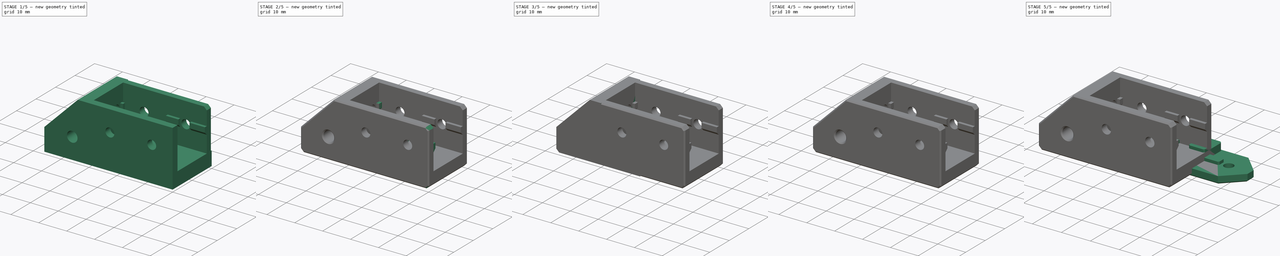
[diagram: build sequence overview — one tinted view per stage of 5, left to right]
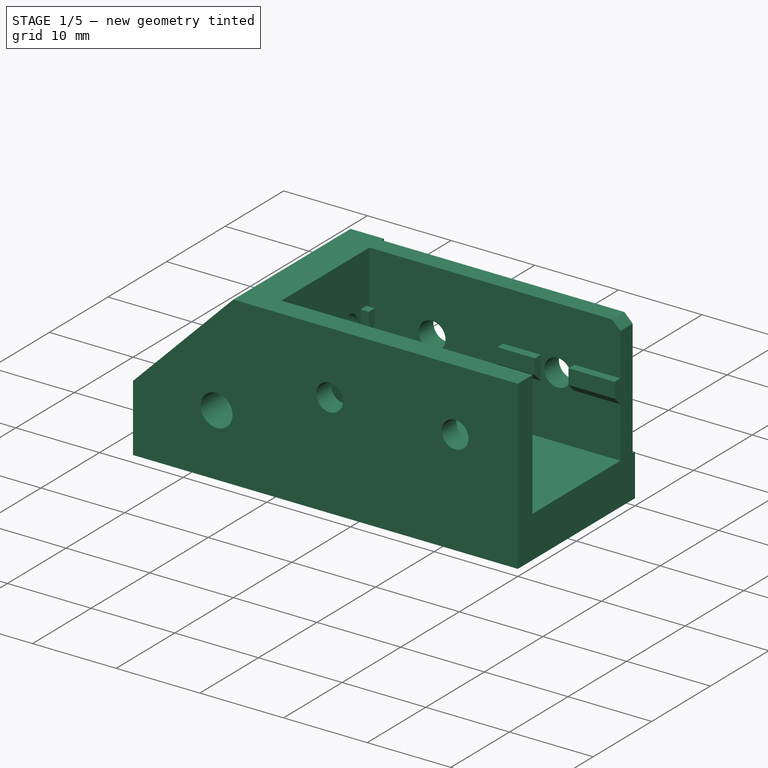
[diagram: stage 1 of 5 — iso view after this stage's code; geometry added in this stage tinted green]
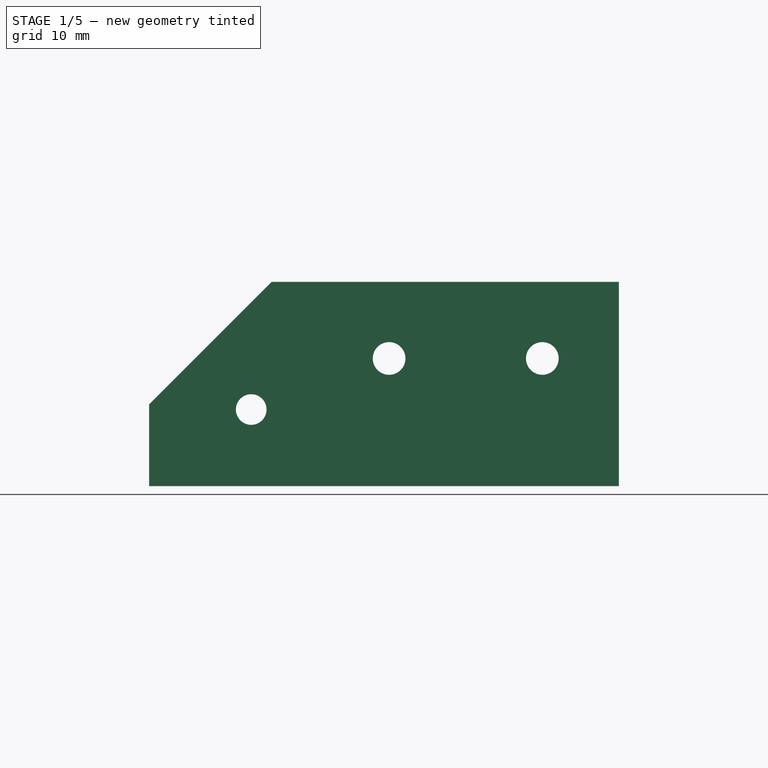
[diagram: stage 1 of 5 — front view after this stage's code; geometry added in this stage tinted green]
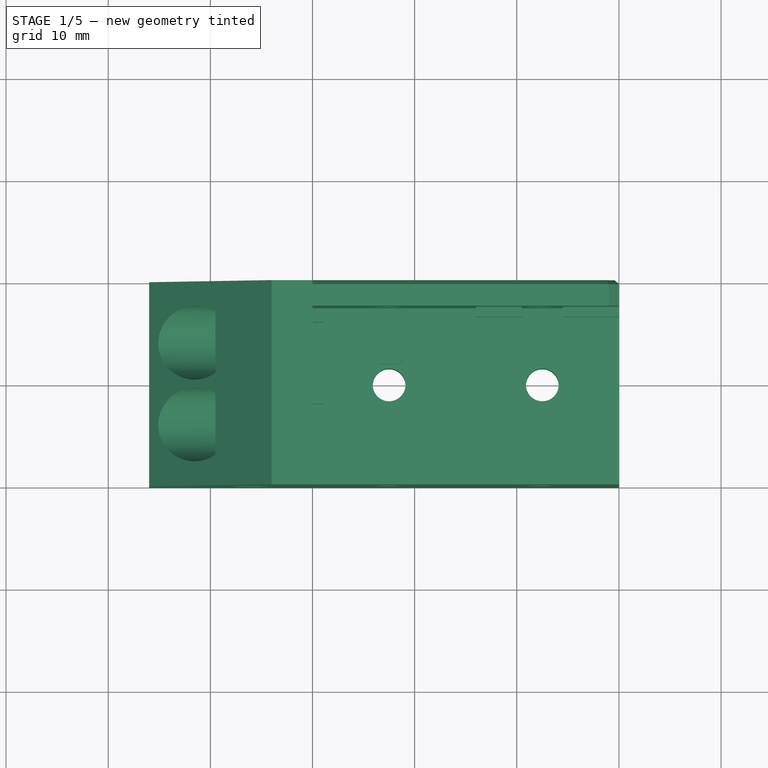
[diagram: stage 1 of 5 — top view after this stage's code; geometry added in this stage tinted green]
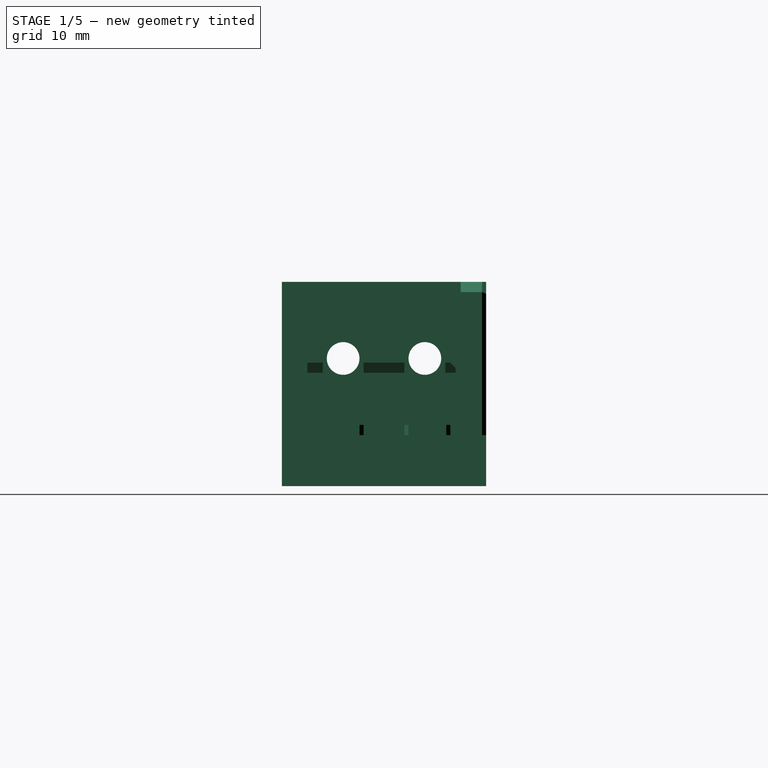
[diagram: stage 1 of 5 — right view after this stage's code; geometry added in this stage tinted green]
FCSTD DOCUMENT  (FreeCAD 0.19R24291 (Git))
Label: z-arm-makerbeamxl
License: Other
LicenseURL: GPL3
objects: Sketcher::SketchObject×38, PartDesign::Pocket×24, PartDesign::Chamfer×22, PartDesign::Pad×15, PartDesign::Body×5, Part::Feature×4, Spreadsheet::Sheet×1, PartDesign::Fillet×1, Part::Cut×1, PartDesign::FeatureBase×1
note: 173 computed .brp shape members not serialized (recipe doc carries the construction recipe); baked Part::Feature solids carry a one-line shape summary decoded from their .brp

FEATURE [Sketcher::SketchObject] Sketch
  FullyConstrained = true
  MapMode = 5
  Support = -> [XY_Plane]
  sketch-geometry (4):
    g0: LineSegment StartX=-16 StartY=10 StartZ=0 EndX=30 EndY=10 EndZ=0
    g1: LineSegment StartX=30 StartY=10 StartZ=0 EndX=30 EndY=-10 EndZ=0
    g2: LineSegment StartX=30 StartY=-10 StartZ=0 EndX=-16 EndY=-10 EndZ=0
    g3: LineSegment StartX=-16 StartY=-10 StartZ=0 EndX=-16 EndY=10 EndZ=0
  constraints (12):
    c: Coincident(g0,g1)
    c: Coincident(g1,g2)
    c: Coincident(g2,g3)
    c: Coincident(g3,g0)
    c: Horizontal(g0)
    c: Horizontal(g2)
    c: Vertical(g1)
    c: Vertical(g3)
    c: DistanceY(g3,g3) = 20
    c: DistanceY(g2,g-1) = 10
    c: DistanceX(g0,g-1) = 16
    c: DistanceX(g0,g0) = 46
FEATURE [PartDesign::Pad] Pad
  Direction = (1,1,1)
  Length = 5
  Length2 = 100
  Profile = -> Sketch
  Type = 0
FEATURE [Sketcher::SketchObject] Sketch002
  FullyConstrained = true
  MapMode = 5
  Placement = pos=(0,0,5) rot=(0,0,1;0rad)
  Support = -> [Pad]
  sketch-geometry (6):
    g0: LineSegment StartX=-16 StartY=10 StartZ=0 EndX=0 EndY=10 EndZ=0
    g1: LineSegment StartX=0 StartY=10 StartZ=0 EndX=0 EndY=-7.5 EndZ=0
    g2: LineSegment StartX=0 StartY=-7.5 StartZ=0 EndX=30 EndY=-7.5 EndZ=0
    g3: LineSegment StartX=30 StartY=-7.5 StartZ=0 EndX=30 EndY=-10 EndZ=0
    g4: LineSegment StartX=30 StartY=-10 StartZ=0 EndX=-16 EndY=-10 EndZ=0
    g5: LineSegment StartX=-16 StartY=-10 StartZ=0 EndX=-16 EndY=10 EndZ=0
  constraints (18):
    c: Horizontal(g0)
    c: Coincident(g0,g1)
    c: PointOnObject(g1,g-2)
    c: Vertical(g1)
    c: Coincident(g1,g2)
    c: Horizontal(g2)
    c: Coincident(g2,g3)
    c: Vertical(g3)
    c: Coincident(g3,g4)
    c: Horizontal(g4)
    c: Coincident(g4,g5)
    c: Coincident(g5,g0)
    c: Vertical(g5)
    c: DistanceX(g0,g0) = 16
    c: DistanceX(g2,g2) = 30
    c: DistanceY(g5,g5) = 20
    c: DistanceY(g1,g1) = 17.5
    c: DistanceY(g4,g-1) = 10
FEATURE [PartDesign::Pad] Pad001
  BaseFeature = -> Pad
  Direction = (1,1,1)
  Length = 15
  Length2 = 100
  Profile = -> Sketch002
  Type = 0
FEATURE [Spreadsheet::Sheet] Spreadsheet  label="params"
  cells = A1=m3 hole; B1(m3_hole)=1.6; A2=m3 head; B2(m3_head)=3.2; A3=magnet outer; B3(magnet_outer)=5; A4=magnet inner; B4(magnet_inner)=3; A5=magnet height; B5(magnet_height)=5; A6=magnet clearance; B6(magnet_clearance)=0.05; A7=magnet offset; B7(magnet_offset)=10; A8=magnet stickout; B8(magnet_stickout)=2; A9=m3 washer; B9(m3_washer)=3.6; A10=m3 insert; B10(m3_insert)=1.9; A11=profile slot; B11(profile_slot)=2.8; A12=hook offset x; B12(hook_offset_x)=6; A13=hook offse h; B13(hook_offset_h)=7.5
FEATURE [Sketcher::SketchObject] Sketch004
  FullyConstrained = true
  MapMode = 5
  Placement = pos=(0,-10,0) rot=(1,0,0;1.5708rad)
  Support = -> [Pad001]
  expr: Constraints[1] = <<params>>.m3_hole
  expr: Constraints[0] = <<params>>.m3_hole
  sketch-geometry (2):
    g0: Circle CenterX=7.5 CenterY=12.5 CenterZ=0 NormalX=0 NormalY=0 NormalZ=1 AngleXU=0 Radius=1.6
    g1: Circle CenterX=22.5 CenterY=12.5 CenterZ=0 NormalX=0 NormalY=0 NormalZ=1 AngleXU=0 Radius=1.6
  constraints (6):
    c: Radius(g1) = 1.6
    c: Radius(g0) = 1.6
    c: DistanceY(g-1,g0) = 12.5
    c: DistanceY(g0,g1) = 0
    c: DistanceX(g-1,g0) = 7.5
    c: DistanceX(g0,g1) = 15
FEATURE [PartDesign::Pocket] Pocket
  BaseFeature = -> Pad001
  Length = 5
  Length2 = 100
  Profile = -> Sketch004
  Type = 1
FEATURE [Sketcher::SketchObject] Sketch005
  FullyConstrained = true
  MapMode = 5
  Placement = pos=(0,0,0) rot=(1,0,0;3.14159rad)
  Support = -> [Pocket]
  expr: Constraints[1] = <<params>>.m3_hole
  expr: Constraints[0] = <<params>>.m3_hole
  sketch-geometry (2):
    g0: Circle CenterX=7.5 CenterY=0 CenterZ=0 NormalX=0 NormalY=0 NormalZ=1 AngleXU=0 Radius=1.6
    g1: Circle CenterX=22.5 CenterY=0 CenterZ=0 NormalX=0 NormalY=0 NormalZ=1 AngleXU=0 Radius=1.6
  constraints (6):
    c: Radius(g0) = 1.6
    c: Radius(g1) = 1.6
    c: DistanceY(g0,g1) = 0
    c: DistanceY(g-1,g0) = 0
    c: DistanceX(g0,g1) = 15
    c: DistanceX(g-1,g0) = 7.5
FEATURE [PartDesign::Pocket] Pocket001
  BaseFeature = -> Pocket
  Length = 5
  Length2 = 100
  Profile = -> Sketch005
  Type = 1
FEATURE [Sketcher::SketchObject] Sketch006
  FullyConstrained = true
  MapMode = 5
  Placement = pos=(0,0,0) rot=(1,0,0;3.14159rad)
  Support = -> [Pocket001]
  expr: Constraints[4] = <<params>>.magnet_outer + <<params>>.magnet_clearance
  expr: Constraints[3] = <<params>>.magnet_inner - <<params>>.magnet_clearance
  expr: Constraints[2] = <<params>>.magnet_offset
  sketch-geometry (2):
    g0: Circle CenterX=-10 CenterY=0 CenterZ=0 NormalX=0 NormalY=0 NormalZ=1 AngleXU=0 Radius=5.05
    g1: Circle CenterX=-10 CenterY=0 CenterZ=0 NormalX=0 NormalY=0 NormalZ=1 AngleXU=0 Radius=2.95
  constraints (5):
    c: Coincident(g1,g0)
    c: DistanceY(g-1,g0) = 0
    c: DistanceX(g0,g-1) = 10
    c: Radius(g1) = 2.95
    c: Radius(g0) = 5.05
FEATURE [PartDesign::Pocket] Pocket002
  BaseFeature = -> Pocket001
  Length = 3
  Length2 = 100
  Profile = -> Sketch006
  Type = 0
  expr: Length = <<params>>.magnet_height - <<params>>.magnet_stickout
FEATURE [Sketcher::SketchObject] Sketch007
  FullyConstrained = true
  MapMode = 5
  Placement = pos=(0,0,0) rot=(1,0,0;3.14159rad)
  Support = -> [Pocket002]
  sketch-geometry (4):
    g0: LineSegment StartX=-16 StartY=3 StartZ=0 EndX=-14 EndY=3 EndZ=0
    g1: LineSegment StartX=-14 StartY=3 StartZ=0 EndX=-14 EndY=-3 EndZ=0
    g2: LineSegment StartX=-14 StartY=-3 StartZ=0 EndX=-16 EndY=-3 EndZ=0
    g3: LineSegment StartX=-16 StartY=-3 StartZ=0 EndX=-16 EndY=3 EndZ=0
  constraints (12):
    c: Coincident(g0,g1)
    c: Coincident(g1,g2)
    c: Coincident(g2,g3)
    c: Coincident(g3,g0)
    c: Horizontal(g0)
    c: Horizontal(g2)
    c: Vertical(g1)
    c: Vertical(g3)
    c: DistanceX(g0,g0) = 2
    c: DistanceX(g0,g-1) = 14
    c: DistanceY(g3,g3) = 6
    c: DistanceY(g-1,g0) = 3
FEATURE [PartDesign::Pocket] Pocket003
  BaseFeature = -> Pocket002
  Length = 3
  Length2 = 100
  Profile = -> Sketch007
  Type = 0
  expr: Length = <<params>>.magnet_height - <<params>>.magnet_stickout
FEATURE [PartDesign::Chamfer] Chamfer004013007011015006009007001005003027
  Angle = 45
  Base = -> Pocket003 [Edge37]
  BaseFeature = -> Pocket003
  ChamferType = 0
  FlipDirection = false
  Size = 12
  Size2 = 1
  SupportTransform = false
FEATURE [Sketcher::SketchObject] Sketch008
  FullyConstrained = true
  MapMode = 5
  Placement = pos=(0,0,0) rot=(0.57735,0.57735,0.57735;2.0944rad)
  Support = -> [Chamfer004013007011015006009007001005003027]
  expr: Constraints[3] = <<params>>.m3_hole
  expr: Constraints[2] = <<params>>.m3_hole
  sketch-geometry (2):
    g0: Circle CenterX=-4 CenterY=12.5 CenterZ=0 NormalX=0 NormalY=0 NormalZ=1 AngleXU=0 Radius=1.6
    g1: Circle CenterX=4 CenterY=12.5 CenterZ=0 NormalX=0 NormalY=0 NormalZ=1 AngleXU=0 Radius=1.6
  constraints (6):
    c: DistanceY(g-1,g0) = 12.5
    c: DistanceY(g0,g1) = 0
    c: Radius(g0) = 1.6
    c: Radius(g1) = 1.6
    c: DistanceX(g0,g1) = 8
    c: DistanceX(g-1,g1) = 4
FEATURE [PartDesign::Pocket] Pocket004
  BaseFeature = -> Chamfer004013007011015006009007001005003027
  Length = 5
  Length2 = 100
  Profile = -> Sketch008
  Type = 1
FEATURE [Sketcher::SketchObject] Sketch009
  FullyConstrained = true
  MapMode = 5
  Placement = pos=(-16,0,0) rot=(0.57735,-0.57735,-0.57735;2.0944rad)
  Support = -> [Pocket004]
  expr: Constraints[1] = <<params>>.m3_washer
  expr: Constraints[0] = <<params>>.m3_washer
  sketch-geometry (2):
    g0: Circle CenterX=-4 CenterY=12.5 CenterZ=0 NormalX=0 NormalY=0 NormalZ=1 AngleXU=0 Radius=3.6
    g1: Circle CenterX=4 CenterY=12.5 CenterZ=0 NormalX=0 NormalY=0 NormalZ=1 AngleXU=0 Radius=3.6
  constraints (6):
    c: Radius(g0) = 3.6
    c: Radius(g1) = 3.6
    c: DistanceX(g0,g1) = 8
    c: DistanceY(g1,g0) = 0
    c: DistanceY(g-1,g1) = 12.5
    c: DistanceX(g0,g-1) = 4
FEATURE [PartDesign::Pocket] Pocket005
  BaseFeature = -> Pocket004
  Length = 6.5
  Length2 = 100
  Profile = -> Sketch009
  Type = 0
  expr: Length = 16 - (14 - 4.5)
FEATURE [Sketcher::SketchObject] Sketch010
  FullyConstrained = true
  MapMode = 5
  Placement = pos=(0,-10,0) rot=(1,0,0;1.5708rad)
  Support = -> [Pocket005]
  expr: Constraints[2] = <<params>>.m3_hole - 0.1
  expr: Constraints[0] = <<params>>.hook_offset_h
  expr: Constraints[1] = <<params>>.hook_offset_x
  sketch-geometry (1):
    g0: Circle CenterX=-6 CenterY=7.5 CenterZ=0 NormalX=0 NormalY=0 NormalZ=1 AngleXU=0 Radius=1.5
  constraints (3):
    c: DistanceY(g-1,g0) = 7.5
    c: DistanceX(g0,g-1) = 6
    c: Radius(g0) = 1.5
FEATURE [PartDesign::Pocket] Pocket006
  BaseFeature = -> Pocket005
  Length = 5
  Length2 = 100
  Profile = -> Sketch010
  Type = 1
FEATURE [Sketcher::SketchObject] Sketch011
  FullyConstrained = true
  MapMode = 5
  Placement = pos=(0,-10,0) rot=(1,0,0;1.5708rad)
  Support = -> [Pocket006]
  expr: Constraints[0] = <<params>>.m3_insert
  expr: Constraints[2] = <<params>>.hook_offset_h
  expr: Constraints[1] = <<params>>.hook_offset_x
  sketch-geometry (1):
    g0: Circle CenterX=-6 CenterY=7.5 CenterZ=0 NormalX=0 NormalY=0 NormalZ=1 AngleXU=0 Radius=1.9
  constraints (3):
    c: Radius(g0) = 1.9
    c: DistanceX(g0,g-1) = 6
    c: DistanceY(g-1,g0) = 7.5
FEATURE [PartDesign::Pocket] Pocket007
  BaseFeature = -> Pocket006
  Length = 8
  Length2 = 100
  Profile = -> Sketch011
  Type = 0
FEATURE [PartDesign::Body] Body  label="1515-corner-arm"
  Group = -> [Sketch,Pad,Sketch002,Pad001,Sketch004,Pocket,Sketch005,Pocket001,Sketch006,Pocket002,Sketch007,Pocket003,Chamfer004013007011015006009007001005003027,Sketch008,Pocket004,Sketch009,Pocket005,Sketch010,Pocket006,Sketch011,Pocket007,Sketch012,Pocket008,Sketch043,Pad013,Sketch044,Pad014,Sketch045,Pad015,Chamfer004013007011015006009007001005003051,Chamfer004013007011015006009007001005003052,+13 more]
  Origin = -> Origin
  Tip = -> Chamfer004013007011015006009007001005003050002
FEATURE [Part::Feature] Part__Mirroring001  label="Chamfer004013007011015006009007001005003050002001 (Mirror #1)001"
  shape: bbox 46 x 20 x 20 mm, 119 faces (baked)
FEATURE [PartDesign::FeatureBase] BaseFeature
  BaseFeature = -> Part__Mirroring001
FEATURE [Sketcher::SketchObject] Sketch053
  AttachmentOffset = pos=(0,0,-15) rot=(0,0,1;0rad)
  FullyConstrained = true
  MapMode = 5
  Placement = pos=(15,0,0) rot=(0.57735,0.57735,0.57735;2.0944rad)
  Support = -> [BaseFeature]
  sketch-geometry (13):
    g0: LineSegment StartX=-3 StartY=0 StartZ=0 EndX=-5 EndY=0 EndZ=0
    g1: LineSegment StartX=-5 StartY=0 StartZ=0 EndX=-5 EndY=2 EndZ=0
    g2: LineSegment StartX=-5 StartY=2 StartZ=0 EndX=-3 EndY=4 EndZ=0
    g3: LineSegment StartX=-3 StartY=4 StartZ=0 EndX=0 EndY=4 EndZ=0
    g4: LineSegment StartX=0 StartY=4 StartZ=0 EndX=3 EndY=4 EndZ=0
    g5: LineSegment StartX=3 StartY=4 StartZ=0 EndX=5 EndY=2 EndZ=0
    g6: LineSegment StartX=5 StartY=2 StartZ=0 EndX=5 EndY=0 EndZ=0
    g7: LineSegment StartX=5 StartY=0 StartZ=0 EndX=3 EndY=0 EndZ=0
    g8: LineSegment StartX=3 StartY=0 StartZ=0 EndX=3 EndY=1 EndZ=0
    g9: LineSegment StartX=3 StartY=1 StartZ=0 EndX=2 EndY=2 EndZ=0
    g10: LineSegment StartX=2 StartY=2 StartZ=0 EndX=-2 EndY=2 EndZ=0
    g11: LineSegment StartX=-2 StartY=2 StartZ=0 EndX=-3 EndY=1 EndZ=0
    g12: LineSegment StartX=-3 StartY=1 StartZ=0 EndX=-3 EndY=0 EndZ=0
  constraints (39):
    c: Horizontal(g0)
    c: Coincident(g0,g1)
    c: Vertical(g1)
    c: Coincident(g1,g2)
    c: Coincident(g2,g3)
    c: Horizontal(g3)
    c: Coincident(g3,g4)
    c: Horizontal(g4)
    c: Coincident(g4,g5)
    c: Coincident(g5,g6)
    c: PointOnObject(g6,g-1)
    c: Vertical(g6)
    c: Coincident(g6,g7)
    c: PointOnObject(g7,g-1)
    c: Coincident(g7,g8)
    c: Vertical(g8)
    c: Coincident(g8,g9)
    c: Coincident(g9,g10)
    c: Horizontal(g10)
    c: Coincident(g10,g11)
    c: Coincident(g11,g12)
    c: Coincident(g12,g0)
    c: Vertical(g12)
    c: DistanceX(g0,g0) = 2
    c: DistanceX(g7,g7) = 2
    c: DistanceX(g3,g3) = 3
    c: DistanceX(g10,g10) = 4
    c: DistanceX(g11,g10) = 1
    c: DistanceX(g9,g8) = 1
    c: DistanceY(g1,g1) = 2
    c: DistanceY(g6,g6) = 2
    c: DistanceY(g1,g2) = 2
    c: DistanceY(g5,g4) = 2
    c: DistanceX(g4,g5) = 2
    c: DistanceX(g-1,g7) = 3
    c: DistanceY(g11,g10) = 1
    c: DistanceX(g2,g-1) = 3
    c: DistanceY(g-1,g8) = 1
    c: DistanceY(g-1,g11) = 1
FEATURE [PartDesign::Pocket] Pocket031
  BaseFeature = -> BaseFeature
  Length = 3
  Length2 = 100
  Profile = -> Sketch053
  Reversed = true
  Type = 0
FEATURE [PartDesign::Body] Body005003002  label="1515-corner-arm-mirror"
  BaseFeature = -> Part__Mirroring001
  Group = -> [BaseFeature,Sketch053,Pocket031]
  Origin = -> Origin007
  Tip = -> Pocket031
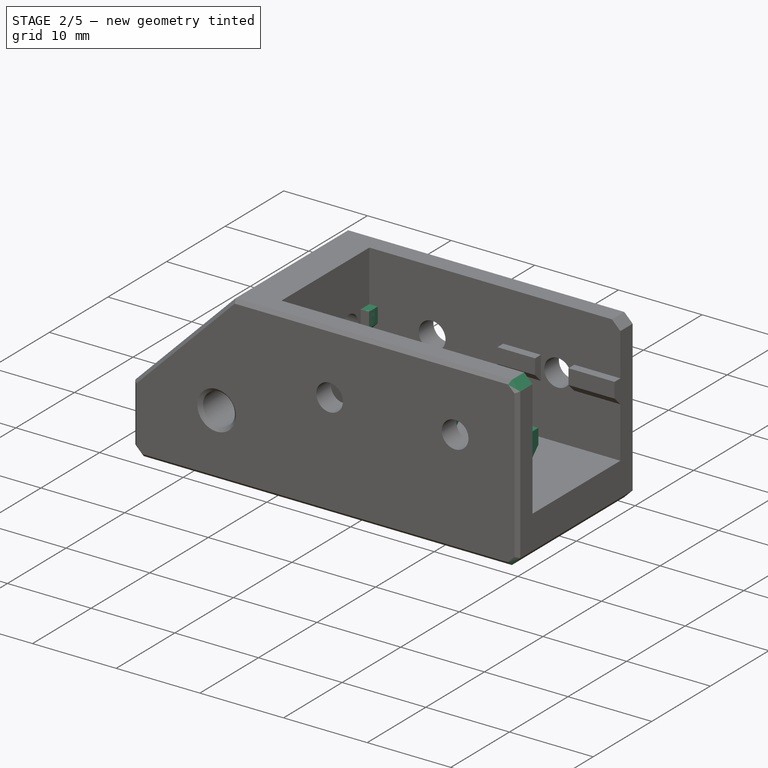
[diagram: stage 2 of 5 — iso view after this stage's code; geometry added in this stage tinted green]
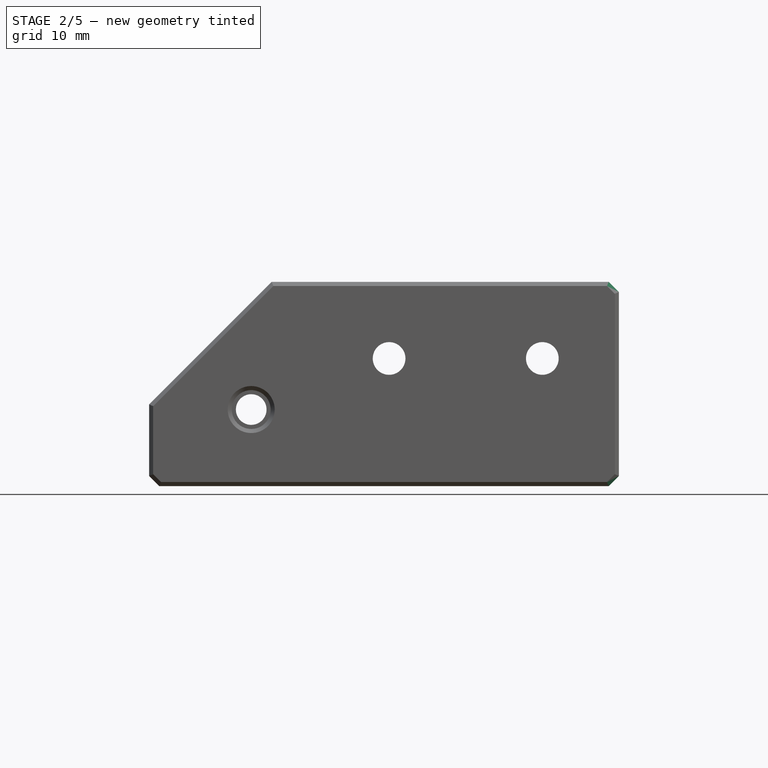
[diagram: stage 2 of 5 — front view after this stage's code; geometry added in this stage tinted green]
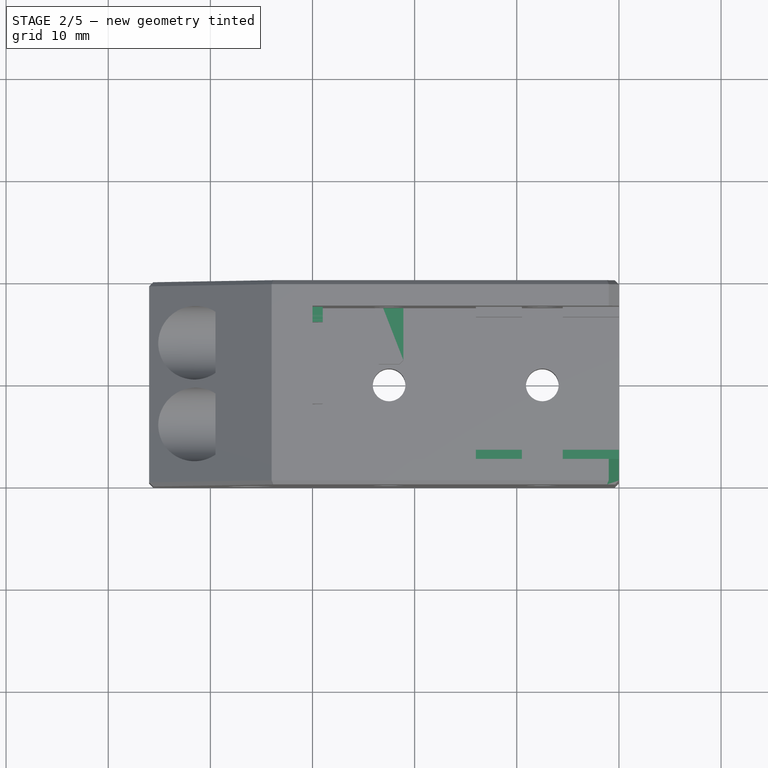
[diagram: stage 2 of 5 — top view after this stage's code; geometry added in this stage tinted green]
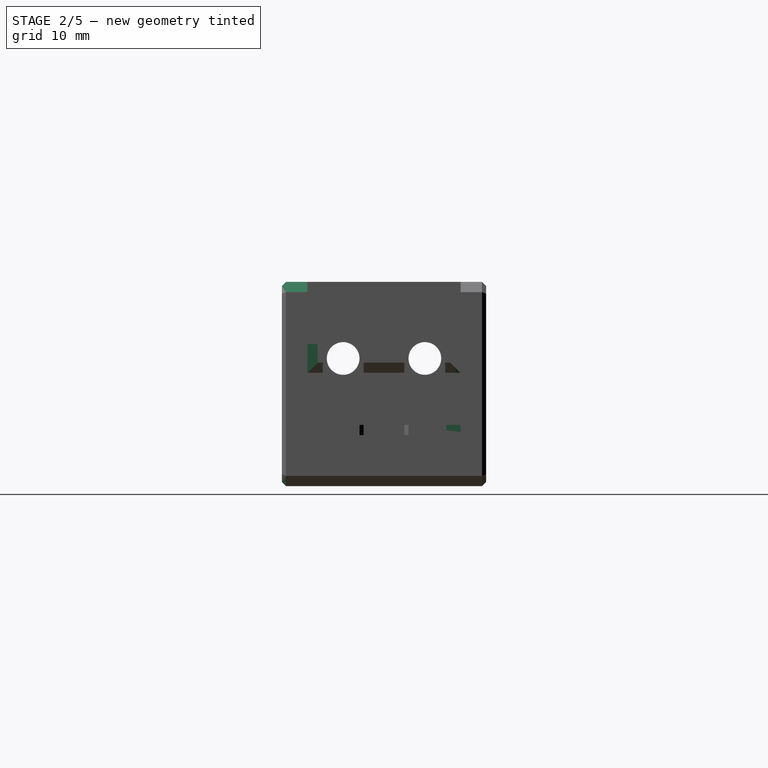
[diagram: stage 2 of 5 — right view after this stage's code; geometry added in this stage tinted green]
FEATURE [Sketcher::SketchObject] Sketch012
  FullyConstrained = true
  MapMode = 5
  Placement = pos=(0,10,0) rot=(0,0.707107,0.707107;3.14159rad)
  Support = -> [Pocket007]
  expr: Constraints[2] = <<params>>.m3_insert
  expr: Constraints[0] = <<params>>.hook_offset_h
  expr: Constraints[1] = <<params>>.hook_offset_x
  sketch-geometry (1):
    g0: Circle CenterX=6 CenterY=7.5 CenterZ=0 NormalX=0 NormalY=0 NormalZ=1 AngleXU=0 Radius=1.9
  constraints (3):
    c: DistanceY(g-1,g0) = 7.5
    c: DistanceX(g-1,g0) = 6
    c: Radius(g0) = 1.9
FEATURE [PartDesign::Pocket] Pocket008
  BaseFeature = -> Pocket007
  Length = 8
  Length2 = 100
  Profile = -> Sketch012
  Type = 0
FEATURE [PartDesign::Body] Body005002  label="1515-label"
  Group = -> [Sketch041,Pad011,Chamfer004013007011015006009007001005003047,Chamfer004013007011015006009007001005003048,Sketch042,Pad012,Chamfer004013007011015006009007001005003049,Chamfer004013007011015006009007001005003050]
  Origin = -> Origin006
  Tip = -> Chamfer004013007011015006009007001005003050
FEATURE [Part::Feature] snakeoil_logo_14_001001_solid  label="snakeoil_logo_14_001001 (Solid)"
  Placement = pos=(24,86,11) rot=(1,0,0;3.14159rad)
  shape: bbox 22 x 12 x 4 mm, 637 faces (baked)
FEATURE [Sketcher::SketchObject] Sketch043
  FullyConstrained = true
  MapMode = 5
  Placement = pos=(0,0,5) rot=(0,0,1;0rad)
  Support = -> [Pocket008]
  expr: Constraints[17] = 7.5 - <<params>>.profile_slot / 2
  expr: Constraints[18] = <<params>>.profile_slot
  expr: Constraints[19] = <<params>>.profile_slot
  sketch-geometry (8):
    g0: LineSegment StartX=6.1 StartY=10 StartZ=0 EndX=8.9 EndY=10 EndZ=0
    g1: LineSegment StartX=8.9 StartY=10 StartZ=0 EndX=8.9 EndY=2 EndZ=0
    g2: LineSegment StartX=8.9 StartY=2 StartZ=0 EndX=6.1 EndY=2 EndZ=0
    g3: LineSegment StartX=6.1 StartY=2 StartZ=0 EndX=6.1 EndY=10 EndZ=0
    g4: LineSegment StartX=6.1 StartY=-2 StartZ=0 EndX=8.9 EndY=-2 EndZ=0
    g5: LineSegment StartX=8.9 StartY=-2 StartZ=0 EndX=8.9 EndY=-6.5 EndZ=0
    g6: LineSegment StartX=8.9 StartY=-6.5 StartZ=0 EndX=6.1 EndY=-6.5 EndZ=0
    g7: LineSegment StartX=6.1 StartY=-6.5 StartZ=0 EndX=6.1 EndY=-2 EndZ=0
  constraints (24):
    c: Coincident(g0,g1)
    c: Coincident(g1,g2)
    c: Coincident(g2,g3)
    c: Coincident(g3,g0)
    c: Horizontal(g0)
    c: Horizontal(g2)
    c: Vertical(g1)
    c: Vertical(g3)
    c: Coincident(g4,g5)
    c: Coincident(g5,g6)
    c: Coincident(g6,g7)
    c: Coincident(g7,g4)
    c: Horizontal(g4)
    c: Horizontal(g6)
    c: Vertical(g5)
    c: Vertical(g7)
    c: DistanceX(g1,g4) = 0
    c: DistanceX(g-1,g2) = 6.1
    c: DistanceX(g2,g2) = 2.8
    c: DistanceX(g4,g4) = 2.8
    c: DistanceY(g-1,g2) = 2
    c: DistanceY(g4,g-1) = 2
    c: DistanceY(g7,g7) = 4.5
    c: DistanceY(g3,g3) = 8
FEATURE [PartDesign::Pad] Pad013
  BaseFeature = -> Pocket008
  Direction = (1,1,1)
  Length = 1
  Length2 = 100
  Profile = -> Sketch043
  Type = 0
FEATURE [Sketcher::SketchObject] Sketch044
  FullyConstrained = true
  MapMode = 5
  Placement = pos=(0,0,0) rot=(0.57735,0.57735,0.57735;2.0944rad)
  Support = -> [Pad013]
  expr: Constraints[24] = <<params>>.profile_slot
  expr: Constraints[25] = <<params>>.profile_slot
  expr: Constraints[26] = <<params>>.profile_slot
  expr: Constraints[29] = 5 + 7.5 - <<params>>.profile_slot / 2
  sketch-geometry (12):
    g0: LineSegment StartX=-7 StartY=13.9 StartZ=0 EndX=-6 EndY=13.9 EndZ=0
    g1: LineSegment StartX=-6 StartY=13.9 StartZ=0 EndX=-6 EndY=11.1 EndZ=0
    g2: LineSegment StartX=-6 StartY=11.1 StartZ=0 EndX=-7 EndY=11.1 EndZ=0
    g3: LineSegment StartX=-7 StartY=11.1 StartZ=0 EndX=-7 EndY=13.9 EndZ=0
    g4: LineSegment StartX=-2 StartY=13.9 StartZ=0 EndX=2 EndY=13.9 EndZ=0
    g5: LineSegment StartX=2 StartY=13.9 StartZ=0 EndX=2 EndY=11.1 EndZ=0
    g6: LineSegment StartX=2 StartY=11.1 StartZ=0 EndX=-2 EndY=11.1 EndZ=0
    g7: LineSegment StartX=-2 StartY=11.1 StartZ=0 EndX=-2 EndY=13.9 EndZ=0
    g8: LineSegment StartX=6 StartY=13.9 StartZ=0 EndX=10 EndY=13.9 EndZ=0
    g9: LineSegment StartX=10 StartY=13.9 StartZ=0 EndX=10 EndY=11.1 EndZ=0
    g10: LineSegment StartX=10 StartY=11.1 StartZ=0 EndX=6 EndY=11.1 EndZ=0
    g11: LineSegment StartX=6 StartY=11.1 StartZ=0 EndX=6 EndY=13.9 EndZ=0
  constraints (36):
    c: Coincident(g0,g1)
    c: Coincident(g1,g2)
    c: Coincident(g2,g3)
    c: Coincident(g3,g0)
    c: Horizontal(g0)
    c: Horizontal(g2)
    c: Vertical(g1)
    c: Vertical(g3)
    c: Coincident(g4,g5)
    c: Coincident(g5,g6)
    c: Coincident(g6,g7)
    c: Coincident(g7,g4)
    c: Horizontal(g4)
    c: Horizontal(g6)
    c: Vertical(g5)
    c: Vertical(g7)
    c: Coincident(g8,g9)
    c: Coincident(g9,g10)
    c: Coincident(g10,g11)
    c: Coincident(g11,g8)
    c: Horizontal(g8)
    c: Horizontal(g10)
    c: Vertical(g9)
    c: Vertical(g11)
    c: DistanceY(g1,g1) = 2.8
    c: DistanceY(g7,g7) = 2.8
    c: DistanceY(g11,g11) = 2.8
    c: DistanceY(g6,g1) = 0
    c: DistanceY(g10,g5) = 0
    c: DistanceY(g-1,g5) = 11.1
    c: DistanceX(g1,g6) = 4
    c: DistanceX(g5,g10) = 4
    c: DistanceX(g6,g-1) = 2
    c: DistanceX(g2,g1) = 1
    c: DistanceX(g4,g4) = 4
    c: DistanceX(g8,g8) = 4
FEATURE [PartDesign::Pad] Pad014
  BaseFeature = -> Pad013
  Direction = (1,1,1)
  Length = 1
  Length2 = 100
  Profile = -> Sketch044
  Type = 0
FEATURE [Sketcher::SketchObject] Sketch045
  FullyConstrained = true
  MapMode = 5
  Placement = pos=(0,-7.5,0) rot=(0,0.707107,0.707107;3.14159rad)
  Support = -> [Pad014]
  expr: Constraints[17] = <<params>>.profile_slot
  expr: Constraints[18] = <<params>>.profile_slot
  expr: Constraints[19] = 5 + 7.5 - <<params>>.profile_slot / 2
  sketch-geometry (8):
    g0: LineSegment StartX=-30 StartY=13.9 StartZ=0 EndX=-24.5 EndY=13.9 EndZ=0
    g1: LineSegment StartX=-24.5 StartY=13.9 StartZ=0 EndX=-24.5 EndY=11.1 EndZ=0
    g2: LineSegment StartX=-24.5 StartY=11.1 StartZ=0 EndX=-30 EndY=11.1 EndZ=0
    g3: LineSegment StartX=-30 StartY=11.1 StartZ=0 EndX=-30 EndY=13.9 EndZ=0
    g4: LineSegment StartX=-20.5 StartY=13.9 StartZ=0 EndX=-16 EndY=13.9 EndZ=0
    g5: LineSegment StartX=-16 StartY=13.9 StartZ=0 EndX=-16 EndY=11.1 EndZ=0
    g6: LineSegment StartX=-16 StartY=11.1 StartZ=0 EndX=-20.5 EndY=11.1 EndZ=0
    g7: LineSegment StartX=-20.5 StartY=11.1 StartZ=0 EndX=-20.5 EndY=13.9 EndZ=0
  constraints (24):
    c: Coincident(g0,g1)
    c: Coincident(g1,g2)
    c: Coincident(g2,g3)
    c: Coincident(g3,g0)
    c: Horizontal(g0)
    c: Horizontal(g2)
    c: Vertical(g1)
    c: Vertical(g3)
    c: Coincident(g4,g5)
    c: Coincident(g5,g6)
    c: Coincident(g6,g7)
    c: Coincident(g7,g4)
    c: Horizontal(g4)
    c: Horizontal(g6)
    c: Vertical(g5)
    c: Vertical(g7)
    c: DistanceY(g1,g6) = 0
    c: DistanceY(g1,g1) = 2.8
    c: DistanceY(g7,g7) = 2.8
    c: DistanceY(g-1,g5) = 11.1
    c: DistanceX(g5,g-1) = 16
    c: DistanceX(g4,g4) = 4.5
    c: DistanceX(g1,g6) = 4
    c: DistanceX(g0,g0) = 5.5
FEATURE [PartDesign::Pad] Pad015
  BaseFeature = -> Pad014
  Direction = (1,1,1)
  Length = 1
  Length2 = 100
  Profile = -> Sketch045
  Type = 0
FEATURE [PartDesign::Chamfer] Chamfer004013007011015006009007001005003051
  Angle = 45
  Base = -> Pad015 [Edge158,Edge167,Edge124,Edge115,Edge109]
  BaseFeature = -> Pad015
  ChamferType = 0
  FlipDirection = false
  Size = 0.99
  Size2 = 1
  SupportTransform = false
FEATURE [PartDesign::Chamfer] Chamfer004013007011015006009007001005003052
  Angle = 45
  Base = -> Chamfer004013007011015006009007001005003051 [Edge144,Edge142,Edge136,Edge132,Edge131,Edge146,Edge141,Edge138]
  BaseFeature = -> Chamfer004013007011015006009007001005003051
  ChamferType = 0
  FlipDirection = false
  Size = 0.4
  Size2 = 1
  SupportTransform = false
FEATURE [PartDesign::Chamfer] Chamfer004013007011015006009007001005003053
  Angle = 45
  Base = -> Chamfer004013007011015006009007001005003052 [Edge102,Edge98,Edge45,Edge117]
  BaseFeature = -> Chamfer004013007011015006009007001005003052
  ChamferType = 0
  FlipDirection = false
  Size = 1
  Size2 = 1
  SupportTransform = false
FEATURE [Sketcher::SketchObject] Sketch046
  FullyConstrained = true
  MapMode = 5
  Placement = pos=(0,0,0) rot=(1,0,0;3.14159rad)
  Support = -> [Chamfer004013007011015006009007001005003053]
  expr: Constraints[2] = <<params>>.magnet_inner
  sketch-geometry (1):
    g0: Circle CenterX=-10 CenterY=0 CenterZ=0 NormalX=0 NormalY=0 NormalZ=1 AngleXU=0 Radius=3
  constraints (3):
    c: DistanceY(g-1,g0) = 0
    c: DistanceX(g0,g-1) = 10
    c: Radius(g0) = 3
FEATURE [PartDesign::Pocket] Pocket027
  BaseFeature = -> Chamfer004013007011015006009007001005003053
  Length = 1
  Length2 = 100
  Profile = -> Sketch046
  Type = 0
FEATURE [PartDesign::Chamfer] Chamfer004013007011015006009007001005003054
  Angle = 45
  Base = -> Pocket027 [Edge16,Edge14,Edge12,Edge64,Edge34,Edge33,Edge31,Edge229,Edge29,Edge19]
  BaseFeature = -> Pocket027
  ChamferType = 0
  FlipDirection = false
  Size = 0.4
  Size2 = 1
  SupportTransform = false
FEATURE [Sketcher::SketchObject] Sketch047
  FullyConstrained = true
  MapMode = 5
  Placement = pos=(0,0,5) rot=(0,0,1;0rad)
  Support = -> [Chamfer004013007011015006009007001005003054]
  sketch-geometry (4):
    g0: LineSegment StartX=15 StartY=10 StartZ=0 EndX=30 EndY=10 EndZ=0
    g1: LineSegment StartX=30 StartY=10 StartZ=0 EndX=30 EndY=7.5 EndZ=0
    g2: LineSegment StartX=30 StartY=7.5 StartZ=0 EndX=15 EndY=7.5 EndZ=0
    g3: LineSegment StartX=15 StartY=7.5 StartZ=0 EndX=15 EndY=10 EndZ=0
  constraints (12):
    c: Coincident(g0,g1)
    c: Coincident(g1,g2)
    c: Coincident(g2,g3)
    c: Coincident(g3,g0)
    c: Horizontal(g0)
    c: Horizontal(g2)
    c: Vertical(g1)
    c: Vertical(g3)
    c: DistanceY(g-1,g2) = 7.5
    c: DistanceX(g-1,g2) = 15
    c: DistanceX(g0,g0) = 15
    c: DistanceY(g3,g3) = 2.5
FEATURE [PartDesign::Pocket] Pocket028
  BaseFeature = -> Chamfer004013007011015006009007001005003054
  Length = 5
  Length2 = 100
  Profile = -> Sketch047
  Type = 1
FEATURE [PartDesign::Chamfer] Chamfer004013007011015006009007001005003055
  Angle = 45
  Base = -> Pocket028 [Edge54,Edge55,Edge44,Edge45,Edge28,Edge27,Edge26,Edge7,Edge23,Edge66,Edge73,Edge10,Edge3,Edge21,Edge58,Edge56,Edge57,Edge59,Edge15,Edge16,Edge18]
  BaseFeature = -> Pocket028
  ChamferType = 0
  FlipDirection = false
  Size = 0.4
  Size2 = 1
  SupportTransform = false
FEATURE [PartDesign::Chamfer] Chamfer004013007011015006009007001005003056
  Angle = 45
  Base = -> Chamfer004013007011015006009007001005003055 [Edge107,Edge133]
  BaseFeature = -> Chamfer004013007011015006009007001005003055
  ChamferType = 0
  FlipDirection = false
  Size = 0.4
  Size2 = 1
  SupportTransform = false
FEATURE [Part::Feature] Body005003001  label="1515-corner-arm-rev001"
  shape: bbox 46 x 20 x 20 mm, 125 faces (baked)
FEATURE [Sketcher::SketchObject] Sketch048
  AttachmentOffset = pos=(0,0,-4) rot=(0,0,1;0rad)
  FullyConstrained = true
  MapMode = 5
  Placement = pos=(0,-6,-9e-16) rot=(1,0,0;1.5708rad)
  Support = -> [Chamfer004013007011015006009007001005003056]
  sketch-geometry (5):
    g0: LineSegment StartX=-16 StartY=4 StartZ=0 EndX=-16 EndY=1 EndZ=0
    g1: LineSegment StartX=-16 StartY=1 StartZ=0 EndX=-15 EndY=0 EndZ=0
    g2: LineSegment StartX=-15 StartY=0 StartZ=0 EndX=-4 EndY=0 EndZ=0
    g3: LineSegment StartX=-4 StartY=0 StartZ=0 EndX=-4 EndY=4 EndZ=0
    g4: LineSegment StartX=-4 StartY=4 StartZ=0 EndX=-16 EndY=4 EndZ=0
  constraints (15):
    c: Vertical(g0)
    c: Coincident(g0,g1)
    c: Coincident(g1,g2)
    c: Horizontal(g2)
    c: Coincident(g2,g3)
    c: Vertical(g3)
    c: Coincident(g3,g4)
    c: Coincident(g4,g0)
    c: Horizontal(g4)
    c: DistanceX(g4,g4) = 12
    c: DistanceX(g2,g-1) = 4
    c: DistanceY(g3,g3) = 4
    c: DistanceY(g0,g0) = 3
    c: DistanceY(g2,g-1) = 0
    c: DistanceX(g2,g2) = 11
FEATURE [PartDesign::Pad] Pad016
  BaseFeature = -> Chamfer004013007011015006009007001005003056
  Direction = (1,1,1)
  Length = 12
  Length2 = 100
  Profile = -> Sketch048
  Reversed = true
  Type = 0
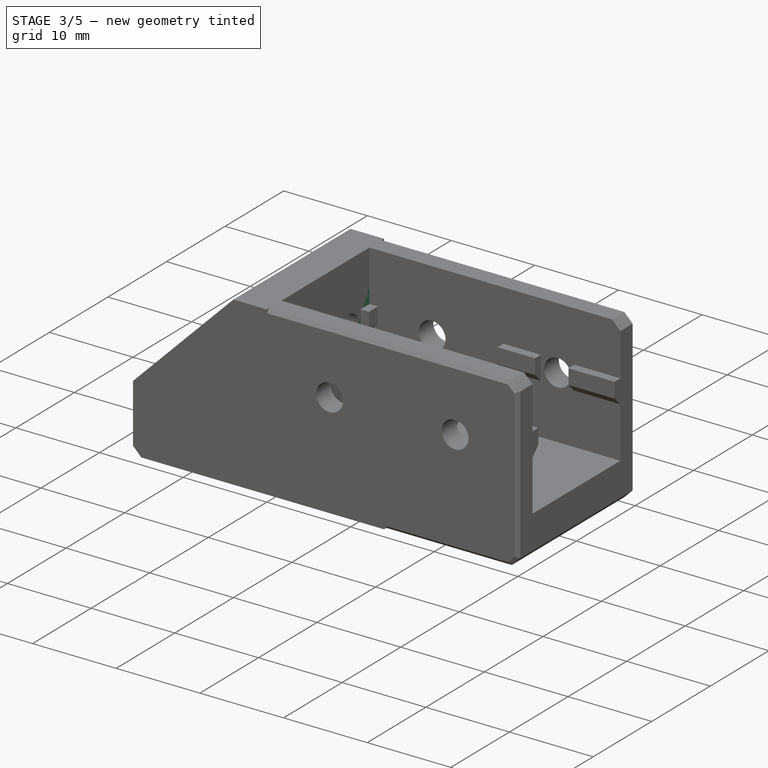
[diagram: stage 3 of 5 — iso view after this stage's code; geometry added in this stage tinted green]
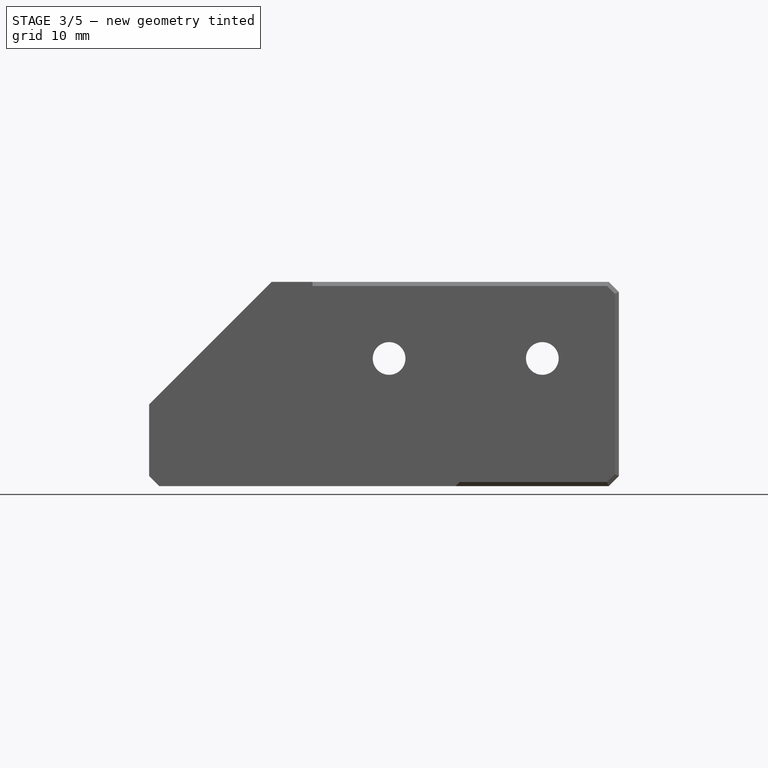
[diagram: stage 3 of 5 — front view after this stage's code; geometry added in this stage tinted green]
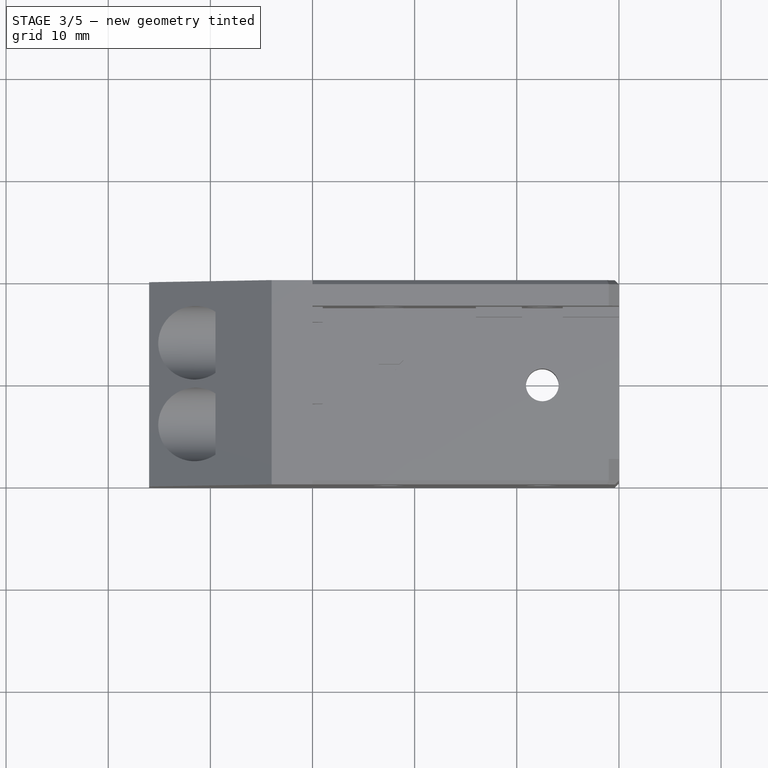
[diagram: stage 3 of 5 — top view after this stage's code; geometry added in this stage tinted green]
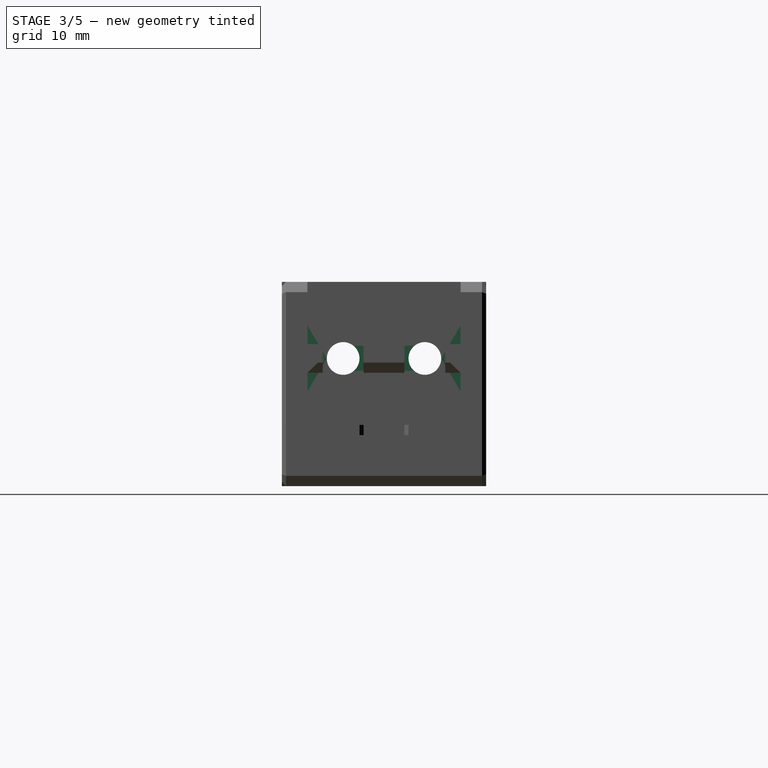
[diagram: stage 3 of 5 — right view after this stage's code; geometry added in this stage tinted green]
FEATURE [Sketcher::SketchObject] Sketch017
  FullyConstrained = true
  MapMode = 5
  Support = -> [XY_Plane002]
  sketch-geometry (4):
    g0: LineSegment StartX=-16 StartY=10 StartZ=0 EndX=15 EndY=10 EndZ=0
    g1: LineSegment StartX=15 StartY=10 StartZ=0 EndX=15 EndY=-10 EndZ=0
    g2: LineSegment StartX=15 StartY=-10 StartZ=0 EndX=-16 EndY=-10 EndZ=0
    g3: LineSegment StartX=-16 StartY=-10 StartZ=0 EndX=-16 EndY=10 EndZ=0
  constraints (12):
    c: Coincident(g0,g1)
    c: Coincident(g1,g2)
    c: Coincident(g2,g3)
    c: Coincident(g3,g0)
    c: Horizontal(g0)
    c: Horizontal(g2)
    c: Vertical(g1)
    c: Vertical(g3)
    c: DistanceY(g1,g1) = 20
    c: DistanceX(g0,g0) = 31
    c: DistanceX(g-1,g0) = 15
    c: DistanceY(g-1,g0) = 10
FEATURE [PartDesign::Pad] Pad005
  Direction = (1,1,1)
  Length = 20
  Length2 = 100
  Profile = -> Sketch017
  Type = 0
FEATURE [Sketcher::SketchObject] Sketch018
  FullyConstrained = true
  MapMode = 5
  Placement = pos=(0,0,20) rot=(0,0,1;0rad)
  Support = -> [Pad005]
  sketch-geometry (4):
    g0: LineSegment StartX=0 StartY=10 StartZ=0 EndX=15 EndY=10 EndZ=0
    g1: LineSegment StartX=15 StartY=10 StartZ=0 EndX=15 EndY=-10 EndZ=0
    g2: LineSegment StartX=15 StartY=-10 StartZ=0 EndX=0 EndY=-10 EndZ=0
    g3: LineSegment StartX=0 StartY=-10 StartZ=0 EndX=0 EndY=10 EndZ=0
  constraints (12):
    c: Coincident(g0,g1)
    c: Coincident(g1,g2)
    c: Coincident(g2,g3)
    c: Coincident(g3,g0)
    c: Horizontal(g0)
    c: Horizontal(g2)
    c: Vertical(g1)
    c: Vertical(g3)
    c: DistanceX(g0,g0) = 15
    c: DistanceX(g-1,g0) = 0
    c: DistanceY(g1,g1) = 20
    c: DistanceY(g-1,g0) = 10
FEATURE [PartDesign::Pocket] Pocket010
  BaseFeature = -> Pad005
  Length = 15
  Length2 = 100
  Profile = -> Sketch018
  Type = 0
FEATURE [PartDesign::Chamfer] Chamfer004013007011015006009007001005003035
  Angle = 45
  Base = -> Pocket010 [Edge16]
  BaseFeature = -> Pocket010
  ChamferType = 0
  FlipDirection = false
  Size = 12
  Size2 = 1
  SupportTransform = false
FEATURE [Sketcher::SketchObject] Sketch019
  FullyConstrained = true
  MapMode = 5
  Placement = pos=(0,0,0) rot=(1,0,0;3.14159rad)
  Support = -> [Chamfer004013007011015006009007001005003035]
  expr: Constraints[4] = <<params>>.magnet_outer + <<params>>.magnet_clearance
  expr: Constraints[3] = <<params>>.magnet_inner - <<params>>.magnet_clearance
  sketch-geometry (2):
    g0: Circle CenterX=-10 CenterY=0 CenterZ=0 NormalX=0 NormalY=0 NormalZ=1 AngleXU=0 Radius=5.05
    g1: Circle CenterX=-10 CenterY=0 CenterZ=0 NormalX=0 NormalY=0 NormalZ=1 AngleXU=0 Radius=2.95
  constraints (5):
    c: Coincident(g1,g0)
    c: DistanceX(g0,g-1) = 10
    c: DistanceY(g-1,g0) = 0
    c: Radius(g1) = 2.95
    c: Radius(g0) = 5.05
FEATURE [PartDesign::Pocket] Pocket011
  BaseFeature = -> Chamfer004013007011015006009007001005003035
  Length = 3
  Length2 = 100
  Profile = -> Sketch019
  Type = 0
  expr: Length = <<params>>.magnet_height - <<params>>.magnet_stickout
FEATURE [Sketcher::SketchObject] Sketch020
  FullyConstrained = true
  MapMode = 5
  Placement = pos=(0,0,0) rot=(1,0,0;3.14159rad)
  Support = -> [Pocket011]
  expr: Constraints[2] = <<params>>.magnet_inner
  sketch-geometry (1):
    g0: Circle CenterX=-10 CenterY=0 CenterZ=0 NormalX=0 NormalY=0 NormalZ=1 AngleXU=0 Radius=3
  constraints (3):
    c: DistanceY(g-1,g0) = 0
    c: DistanceX(g0,g-1) = 10
    c: Radius(g0) = 3
FEATURE [PartDesign::Pocket] Pocket012
  BaseFeature = -> Pocket011
  Length = 1
  Length2 = 100
  Profile = -> Sketch020
  Type = 0
FEATURE [Sketcher::SketchObject] Sketch021
  FullyConstrained = true
  MapMode = 5
  Placement = pos=(0,0,0) rot=(1,0,0;3.14159rad)
  Support = -> [Pocket012]
  sketch-geometry (4):
    g0: LineSegment StartX=-16 StartY=3 StartZ=0 EndX=-14 EndY=3 EndZ=0
    g1: LineSegment StartX=-14 StartY=3 StartZ=0 EndX=-14 EndY=-3 EndZ=0
    g2: LineSegment StartX=-14 StartY=-3 StartZ=0 EndX=-16 EndY=-3 EndZ=0
    g3: LineSegment StartX=-16 StartY=-3 StartZ=0 EndX=-16 EndY=3 EndZ=0
  constraints (12):
    c: Coincident(g0,g1)
    c: Coincident(g1,g2)
    c: Coincident(g2,g3)
    c: Coincident(g3,g0)
    c: Horizontal(g0)
    c: Horizontal(g2)
    c: Vertical(g1)
    c: Vertical(g3)
    c: DistanceX(g0,g0) = 2
    c: DistanceX(g0,g-1) = 14
    c: DistanceY(g1,g1) = 6
    c: DistanceY(g-1,g0) = 3
FEATURE [PartDesign::Pocket] Pocket013
  BaseFeature = -> Pocket012
  Length = 3
  Length2 = 100
  Profile = -> Sketch021
  Type = 0
FEATURE [PartDesign::Chamfer] Chamfer004013007011015006009007001005003036
  Angle = 45
  Base = -> Pocket013 [Edge16,Edge20,Edge28]
  BaseFeature = -> Pocket013
  ChamferType = 0
  FlipDirection = false
  Size = 1
  Size2 = 1
  SupportTransform = false
FEATURE [Sketcher::SketchObject] Sketch022
  FullyConstrained = true
  MapMode = 5
  Placement = pos=(-16,0,0) rot=(0.57735,-0.57735,-0.57735;2.0944rad)
  Support = -> [Chamfer004013007011015006009007001005003036]
  expr: Constraints[4] = <<params>>.m3_washer
  expr: Constraints[3] = <<params>>.m3_washer
  sketch-geometry (2):
    g0: Circle CenterX=-4 CenterY=12.5 CenterZ=0 NormalX=0 NormalY=0 NormalZ=1 AngleXU=0 Radius=3.6
    g1: Circle CenterX=4 CenterY=12.5 CenterZ=0 NormalX=0 NormalY=0 NormalZ=1 AngleXU=0 Radius=3.6
  constraints (6):
    c: DistanceX(g0,g1) = 8
    c: DistanceY(g0,g1) = 0
    c: DistanceY(g-1,g1) = 12.5
    c: Radius(g0) = 3.6
    c: Radius(g1) = 3.6
    c: DistanceX(g0,g-1) = 4
FEATURE [PartDesign::Pocket] Pocket014
  BaseFeature = -> Chamfer004013007011015006009007001005003036
  Length = 6.5
  Length2 = 100
  Profile = -> Sketch022
  Type = 0
FEATURE [Sketcher::SketchObject] Sketch023
  FullyConstrained = true
  MapMode = 5
  Placement = pos=(0,0,0) rot=(0.57735,0.57735,0.57735;2.0944rad)
  Support = -> [Pocket014]
  expr: Constraints[5] = <<params>>.m3_hole
  expr: Constraints[4] = <<params>>.m3_hole
  sketch-geometry (2):
    g0: Circle CenterX=-4 CenterY=12.5 CenterZ=0 NormalX=0 NormalY=0 NormalZ=1 AngleXU=0 Radius=1.6
    g1: Circle CenterX=4 CenterY=12.5 CenterZ=0 NormalX=0 NormalY=0 NormalZ=1 AngleXU=0 Radius=1.6
  constraints (6):
    c: DistanceY(g-1,g1) = 12.5
    c: DistanceY(g1,g0) = 0
    c: DistanceX(g0,g1) = 8
    c: DistanceX(g-1,g1) = 4
    c: Radius(g0) = 1.6
    c: Radius(g1) = 1.6
FEATURE [PartDesign::Pocket] Pocket015
  BaseFeature = -> Pocket014
  Length = 5
  Length2 = 100
  Profile = -> Sketch023
  Type = 1
FEATURE [Sketcher::SketchObject] Sketch024
  FullyConstrained = true
  MapMode = 5
  Placement = pos=(0,0,5) rot=(0,0,1;0rad)
  Support = -> [Pocket015]
  expr: Constraints[5] = <<params>>.m3_hole
  expr: Constraints[4] = <<params>>.m3_hole
  sketch-geometry (2):
    g0: Circle CenterX=7.5 CenterY=6 CenterZ=0 NormalX=0 NormalY=0 NormalZ=1 AngleXU=0 Radius=1.6
    g1: Circle CenterX=7.5 CenterY=-6 CenterZ=0 NormalX=0 NormalY=0 NormalZ=1 AngleXU=0 Radius=1.6
  constraints (6):
    c: DistanceY(g1,g0) = 12
    c: DistanceY(g-1,g0) = 6
    c: DistanceX(g-1,g0) = 7.5
    c: DistanceX(g1,g0) = 0
    c: Radius(g0) = 1.6
    c: Radius(g1) = 1.6
FEATURE [PartDesign::Pocket] Pocket016
  BaseFeature = -> Pocket015
  Length = 5
  Length2 = 100
  Profile = -> Sketch024
  Type = 1
FEATURE [PartDesign::Body] Body002  label="1515-middle-arm"
  Group = -> [Sketch017,Pad005,Sketch018,Pocket010,Chamfer004013007011015006009007001005003035,Sketch019,Pocket011,Sketch020,Pocket012,Sketch021,Pocket013,Chamfer004013007011015006009007001005003036,Sketch022,Pocket014,Sketch023,Pocket015,Sketch024,Pocket016,Sketch025,Pad006,Sketch026,Pad007,Chamfer004013007011015006009007001005003037,Chamfer004013007011015006009007001005003038,Sketch027,Pocket017,Sketch028,+11 more]
  Origin = -> Origin002
  Tip = -> Chamfer
FEATURE [Sketcher::SketchObject] Sketch052
  FullyConstrained = true
  MapMode = 5
  Placement = pos=(0,0,-2.2e-15) rot=(1,0,0;3.14159rad)
  Support = -> [Pad016]
  sketch-geometry (1):
    g0: Circle CenterX=-10 CenterY=0 CenterZ=0 NormalX=0 NormalY=0 NormalZ=1 AngleXU=0 Radius=2.65
  constraints (3):
    c: PointOnObject(g0,g-1)
    c: Radius(g0) = 2.65
    c: DistanceX(g0,g-1) = 10
FEATURE [PartDesign::Pocket] Pocket030
  BaseFeature = -> Pad016
  Length = 6
  Length2 = 100
  Profile = -> Sketch052
  Type = 0
FEATURE [PartDesign::Chamfer] Chamfer004013007011015006009007001005003050002
  Angle = 45
  Base = -> Pocket030 [Edge279]
  BaseFeature = -> Pocket030
  ChamferType = 0
  FlipDirection = false
  Size = 0.4
  Size2 = 1
  SupportTransform = false
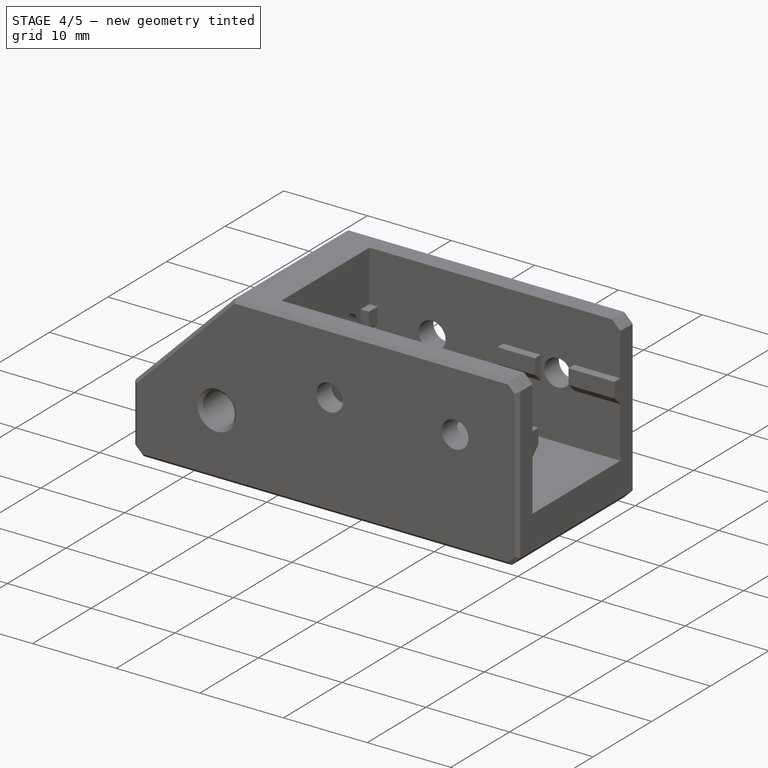
[diagram: stage 4 of 5 — iso view after this stage's code; geometry added in this stage tinted green]
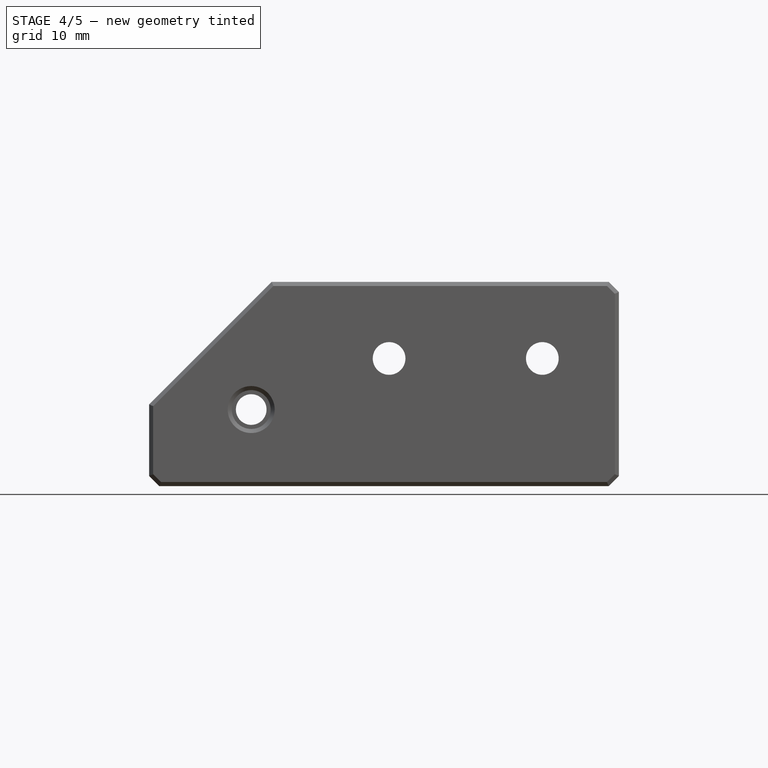
[diagram: stage 4 of 5 — front view after this stage's code; geometry added in this stage tinted green]
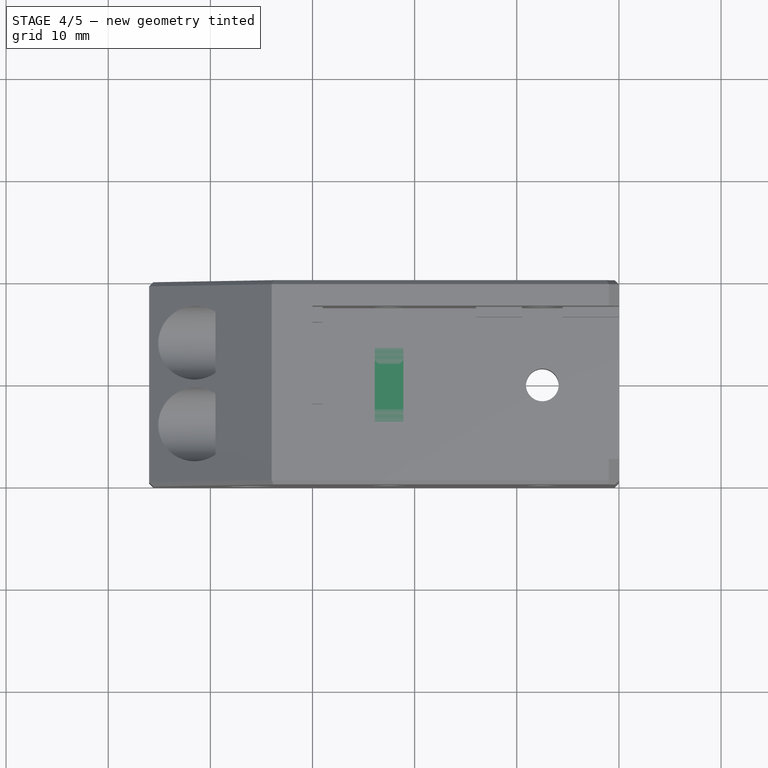
[diagram: stage 4 of 5 — top view after this stage's code; geometry added in this stage tinted green]
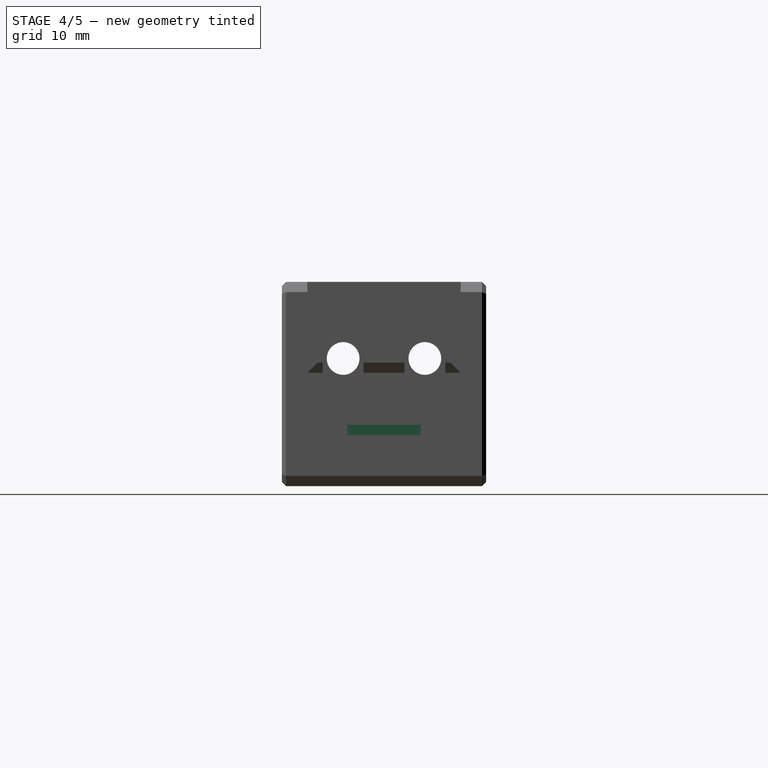
[diagram: stage 4 of 5 — right view after this stage's code; geometry added in this stage tinted green]
FEATURE [Sketcher::SketchObject] Sketch025
  FullyConstrained = true
  MapMode = 5
  Placement = pos=(0,0,5) rot=(0,0,1;0rad)
  Support = -> [Pocket016]
  expr: Constraints[9] = <<params>>.profile_slot
  expr: Constraints[8] = 7.5 - <<params>>.profile_slot / 2
  sketch-geometry (4):
    g0: LineSegment StartX=6.1 StartY=4 StartZ=0 EndX=8.9 EndY=4 EndZ=0
    g1: LineSegment StartX=8.9 StartY=4 StartZ=0 EndX=8.9 EndY=-4 EndZ=0
    g2: LineSegment StartX=8.9 StartY=-4 StartZ=0 EndX=6.1 EndY=-4 EndZ=0
    g3: LineSegment StartX=6.1 StartY=-4 StartZ=0 EndX=6.1 EndY=4 EndZ=0
  constraints (12):
    c: Coincident(g0,g1)
    c: Coincident(g1,g2)
    c: Coincident(g2,g3)
    c: Coincident(g3,g0)
    c: Horizontal(g0)
    c: Horizontal(g2)
    c: Vertical(g1)
    c: Vertical(g3)
    c: DistanceX(g-1,g2) = 6.1
    c: DistanceX(g0,g0) = 2.8
    c: DistanceY(g1,g1) = 8
    c: DistanceY(g2,g-1) = 4
FEATURE [PartDesign::Pad] Pad006
  BaseFeature = -> Pocket016
  Direction = (1,1,1)
  Length = 1
  Length2 = 100
  Profile = -> Sketch025
  Type = 0
FEATURE [Sketcher::SketchObject] Sketch026
  FullyConstrained = true
  MapMode = 5
  Placement = pos=(0,0,0) rot=(0.57735,0.57735,0.57735;2.0944rad)
  Support = -> [Pad006]
  expr: Constraints[29] = 5 + 7.5 - <<params>>.profile_slot / 2
  expr: Constraints[26] = <<params>>.profile_slot
  expr: Constraints[25] = <<params>>.profile_slot
  expr: Constraints[24] = <<params>>.profile_slot
  sketch-geometry (12):
    g0: LineSegment StartX=-10 StartY=13.9 StartZ=0 EndX=-6 EndY=13.9 EndZ=0
    g1: LineSegment StartX=-6 StartY=13.9 StartZ=0 EndX=-6 EndY=11.1 EndZ=0
    g2: LineSegment StartX=-6 StartY=11.1 StartZ=0 EndX=-10 EndY=11.1 EndZ=0
    g3: LineSegment StartX=-10 StartY=11.1 StartZ=0 EndX=-10 EndY=13.9 EndZ=0
    g4: LineSegment StartX=-2 StartY=13.9 StartZ=0 EndX=2 EndY=13.9 EndZ=0
    g5: LineSegment StartX=2 StartY=13.9 StartZ=0 EndX=2 EndY=11.1 EndZ=0
    g6: LineSegment StartX=2 StartY=11.1 StartZ=0 EndX=-2 EndY=11.1 EndZ=0
    g7: LineSegment StartX=-2 StartY=11.1 StartZ=0 EndX=-2 EndY=13.9 EndZ=0
    g8: LineSegment StartX=6 StartY=13.9 StartZ=0 EndX=10 EndY=13.9 EndZ=0
    g9: LineSegment StartX=10 StartY=13.9 StartZ=0 EndX=10 EndY=11.1 EndZ=0
    g10: LineSegment StartX=10 StartY=11.1 StartZ=0 EndX=6 EndY=11.1 EndZ=0
    g11: LineSegment StartX=6 StartY=11.1 StartZ=0 EndX=6 EndY=13.9 EndZ=0
  constraints (36):
    c: Coincident(g0,g1)
    c: Coincident(g1,g2)
    c: Coincident(g2,g3)
    c: Coincident(g3,g0)
    c: Horizontal(g0)
    c: Horizontal(g2)
    c: Vertical(g1)
    c: Vertical(g3)
    c: Coincident(g4,g5)
    c: Coincident(g5,g6)
    c: Coincident(g6,g7)
    c: Coincident(g7,g4)
    c: Horizontal(g4)
    c: Horizontal(g6)
    c: Vertical(g5)
    c: Vertical(g7)
    c: Coincident(g8,g9)
    c: Coincident(g9,g10)
    c: Coincident(g10,g11)
    c: Coincident(g11,g8)
    c: Horizontal(g8)
    c: Horizontal(g10)
    c: Vertical(g9)
    c: Vertical(g11)
    c: DistanceY(g3,g3) = 2.8
    c: DistanceY(g7,g7) = 2.8
    c: DistanceY(g11,g11) = 2.8
    c: DistanceY(g4,g0) = 0
    c: DistanceY(g8,g4) = 0
    c: DistanceY(g-1,g5) = 11.1
    c: DistanceX(g4,g4) = 4
    c: DistanceX(g6,g-1) = 2
    c: DistanceX(g0,g4) = 4
    c: DistanceX(g4,g8) = 4
    c: DistanceX(g0,g0) = 4
    c: DistanceX(g8,g8) = 4
FEATURE [PartDesign::Pad] Pad007
  BaseFeature = -> Pad006
  Direction = (1,1,1)
  Length = 1
  Length2 = 100
  Profile = -> Sketch026
  Type = 0
FEATURE [PartDesign::Chamfer] Chamfer004013007011015006009007001005003037
  Angle = 45
  Base = -> Pad007 [Edge97,Edge94,Edge106]
  BaseFeature = -> Pad007
  ChamferType = 0
  FlipDirection = false
  Size = 0.99
  Size2 = 1
  SupportTransform = false
FEATURE [PartDesign::Chamfer] Chamfer004013007011015006009007001005003038
  Angle = 45
  Base = -> Chamfer004013007011015006009007001005003037 [Edge123,Edge121,Edge119,Edge118]
  BaseFeature = -> Chamfer004013007011015006009007001005003037
  ChamferType = 0
  FlipDirection = false
  Size = 0.4
  Size2 = 1
  SupportTransform = false
FEATURE [Sketcher::SketchObject] Sketch027
  FullyConstrained = true
  MapMode = 5
  Placement = pos=(0,-10,0) rot=(1,0,0;1.5708rad)
  Support = -> [Chamfer004013007011015006009007001005003038]
  expr: Constraints[2] = <<params>>.m3_hole - 0.1
  expr: Constraints[1] = <<params>>.hook_offset_x
  expr: Constraints[0] = <<params>>.hook_offset_h
  sketch-geometry (1):
    g0: Circle CenterX=-6 CenterY=7.5 CenterZ=0 NormalX=0 NormalY=0 NormalZ=1 AngleXU=0 Radius=1.5
  constraints (3):
    c: DistanceY(g-1,g0) = 7.5
    c: DistanceX(g0,g-1) = 6
    c: Radius(g0) = 1.5
FEATURE [PartDesign::Pocket] Pocket017
  BaseFeature = -> Chamfer004013007011015006009007001005003038
  Length = 5
  Length2 = 100
  Profile = -> Sketch027
  Type = 1
FEATURE [Sketcher::SketchObject] Sketch028
  FullyConstrained = true
  MapMode = 5
  Placement = pos=(0,-10,0) rot=(1,0,0;1.5708rad)
  Support = -> [Pocket017]
  expr: Constraints[0] = <<params>>.m3_insert
  expr: Constraints[2] = <<params>>.hook_offset_x
  expr: Constraints[1] = <<params>>.hook_offset_h
  sketch-geometry (1):
    g0: Circle CenterX=-6 CenterY=7.5 CenterZ=0 NormalX=0 NormalY=0 NormalZ=1 AngleXU=0 Radius=1.9
  constraints (3):
    c: Radius(g0) = 1.9
    c: DistanceY(g-1,g0) = 7.5
    c: DistanceX(g0,g-1) = 6
FEATURE [PartDesign::Pocket] Pocket018
  BaseFeature = -> Pocket017
  Length = 8
  Length2 = 100
  Profile = -> Sketch028
  Type = 0
FEATURE [Sketcher::SketchObject] Sketch029
  FullyConstrained = true
  MapMode = 5
  Placement = pos=(0,10,0) rot=(0,0.707107,0.707107;3.14159rad)
  Support = -> [Pocket018]
  expr: Constraints[0] = <<params>>.m3_insert
  expr: Constraints[2] = <<params>>.hook_offset_x
  expr: Constraints[1] = <<params>>.hook_offset_h
  sketch-geometry (1):
    g0: Circle CenterX=6 CenterY=7.5 CenterZ=0 NormalX=0 NormalY=0 NormalZ=1 AngleXU=0 Radius=1.9
  constraints (3):
    c: Radius(g0) = 1.9
    c: DistanceY(g-1,g0) = 7.5
    c: DistanceX(g-1,g0) = 6
FEATURE [PartDesign::Pocket] Pocket019
  BaseFeature = -> Pocket018
  Length = 8
  Length2 = 100
  Profile = -> Sketch029
  Type = 0
FEATURE [PartDesign::Chamfer] Chamfer004013007011015006009007001005003039
  Angle = 45
  Base = -> Pocket019 [Edge38,Edge36,Edge34,Edge32,Edge31,Edge33,Edge35,Edge63,Edge61,Edge59,Edge60,Edge62,Edge64,Edge57]
  BaseFeature = -> Pocket019
  ChamferType = 0
  FlipDirection = false
  Size = 0.4
  Size2 = 1
  SupportTransform = false
FEATURE [PartDesign::Chamfer] Chamfer004013007011015006009007001005003040
  Angle = 45
  Base = -> Chamfer004013007011015006009007001005003039 [Edge158,Edge157,Edge156,Edge168,Edge146,Edge144,Edge143,Edge142,Edge160,Edge185]
  BaseFeature = -> Chamfer004013007011015006009007001005003039
  ChamferType = 0
  FlipDirection = false
  Size = 0.4
  Size2 = 1
  SupportTransform = false
FEATURE [PartDesign::Chamfer] Chamfer004013007011015006009007001005003041
  Angle = 45
  Base = -> Chamfer004013007011015006009007001005003040 [Edge82,Edge62]
  BaseFeature = -> Chamfer004013007011015006009007001005003040
  ChamferType = 0
  FlipDirection = false
  Size = 0.4
  Size2 = 1
  SupportTransform = false
FEATURE [Sketcher::SketchObject] Sketch050
  AttachmentOffset = pos=(0,0,-4) rot=(0,0,1;0rad)
  FullyConstrained = true
  MapMode = 5
  Placement = pos=(0,-6,-9e-16) rot=(1,0,0;1.5708rad)
  Support = -> [Chamfer004013007011015006009007001005003041]
  sketch-geometry (5):
    g0: LineSegment StartX=-16 StartY=4 StartZ=0 EndX=-4 EndY=4 EndZ=0
    g1: LineSegment StartX=-4 StartY=4 StartZ=0 EndX=-4 EndY=0 EndZ=0
    g2: LineSegment StartX=-4 StartY=0 StartZ=0 EndX=-15 EndY=0 EndZ=0
    g3: LineSegment StartX=-15 StartY=0 StartZ=0 EndX=-16 EndY=1 EndZ=0
    g4: LineSegment StartX=-16 StartY=1 StartZ=0 EndX=-16 EndY=4 EndZ=0
  constraints (15):
    c: Horizontal(g0)
    c: Coincident(g0,g1)
    c: PointOnObject(g1,g-1)
    c: Vertical(g1)
    c: Coincident(g1,g2)
    c: Horizontal(g2)
    c: Coincident(g2,g3)
    c: Coincident(g3,g4)
    c: Coincident(g4,g0)
    c: Vertical(g4)
    c: DistanceY(g1,g1) = 4
    c: DistanceY(g4,g4) = 3
    c: DistanceX(g0,g0) = 12
    c: DistanceX(g2,g2) = 11
    c: DistanceX(g1,g-1) = 4
FEATURE [PartDesign::Pad] Pad017
  BaseFeature = -> Chamfer004013007011015006009007001005003041
  Direction = (1,1,1)
  Length = 12
  Length2 = 100
  Profile = -> Sketch050
  Reversed = true
  Type = 0
FEATURE [Sketcher::SketchObject] Sketch051
  FullyConstrained = true
  MapMode = 5
  Placement = pos=(0,0,0) rot=(1,0,0;3.14159rad)
  Support = -> [Pad017]
  sketch-geometry (1):
    g0: Circle CenterX=-10 CenterY=0 CenterZ=0 NormalX=0 NormalY=0 NormalZ=1 AngleXU=0 Radius=2.65
  constraints (3):
    c: PointOnObject(g0,g-1)
    c: DistanceX(g0,g-1) = 10
    c: Radius(g0) = 2.65
FEATURE [PartDesign::Pocket] Pocket029
  BaseFeature = -> Pad017
  Length = 6
  Length2 = 100
  Profile = -> Sketch051
  Type = 0
FEATURE [PartDesign::Chamfer] Chamfer
  Angle = 45
  Base = -> Pocket029 [Edge191]
  BaseFeature = -> Pocket029
  ChamferType = 0
  FlipDirection = false
  Size = 0.4
  Size2 = 1
  SupportTransform = false
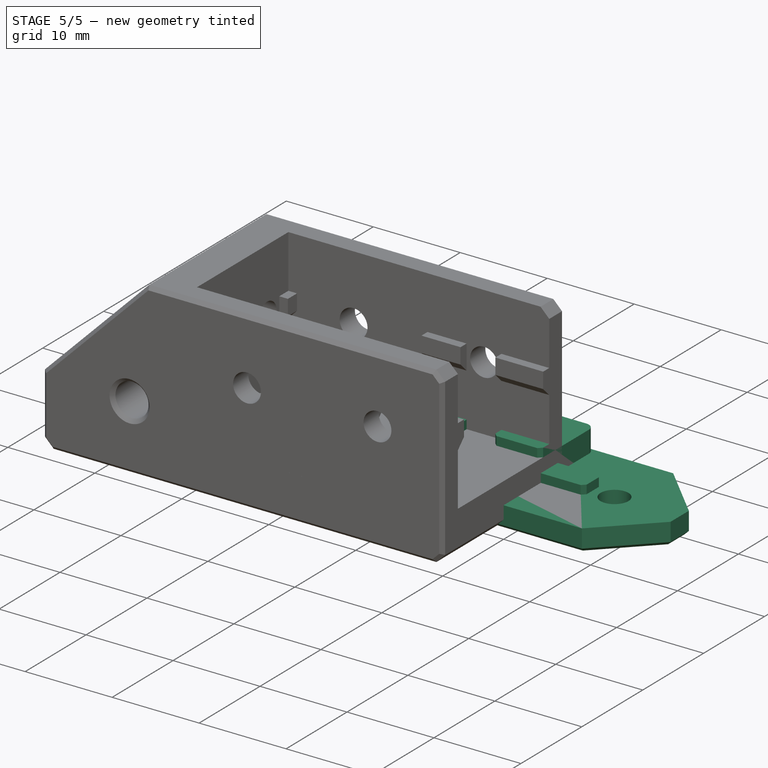
[diagram: stage 5 of 5 — iso view after this stage's code; geometry added in this stage tinted green]
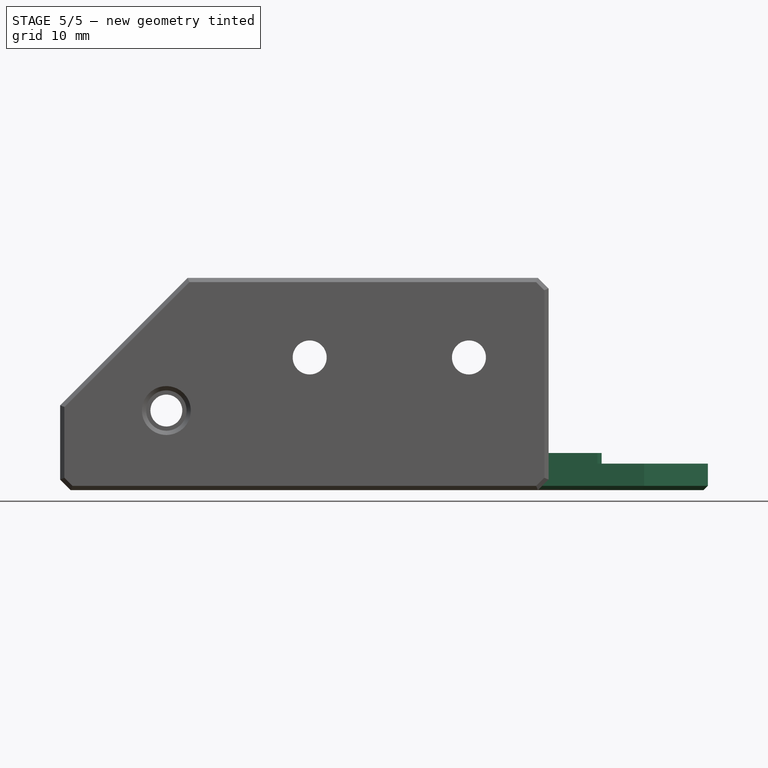
[diagram: stage 5 of 5 — front view after this stage's code; geometry added in this stage tinted green]
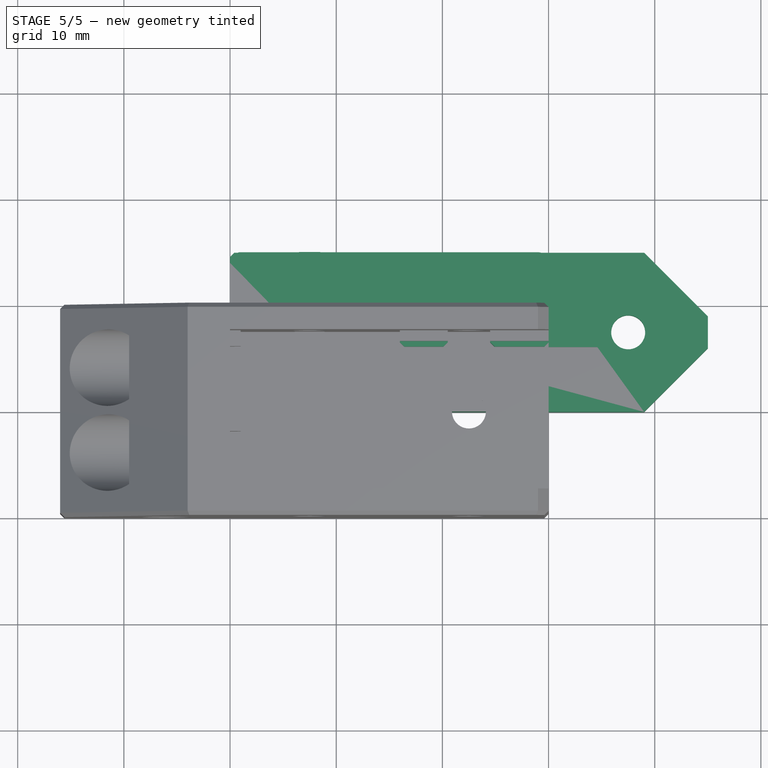
[diagram: stage 5 of 5 — top view after this stage's code; geometry added in this stage tinted green]
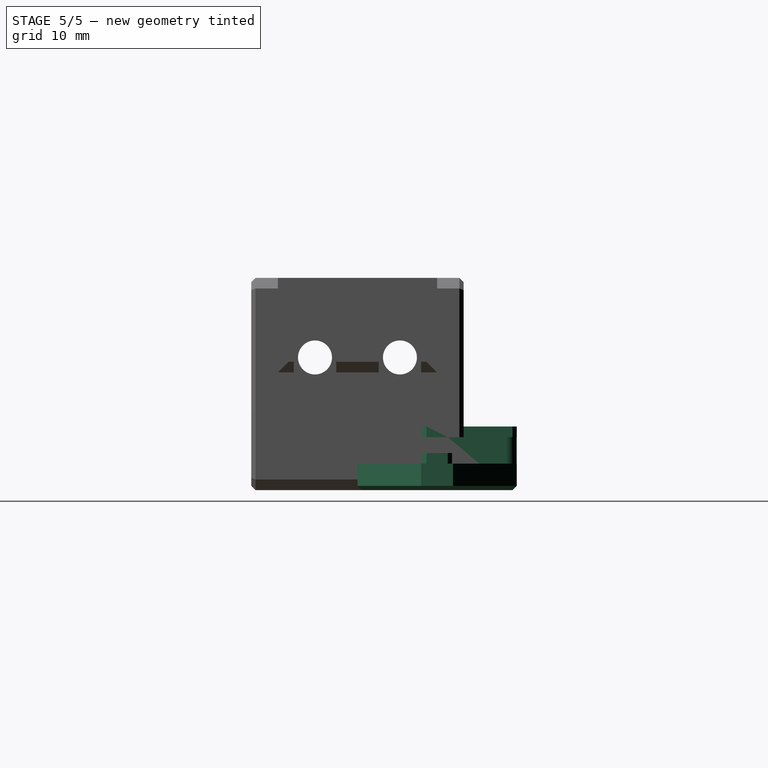
[diagram: stage 5 of 5 — right view after this stage's code; geometry added in this stage tinted green]
FEATURE [Sketcher::SketchObject] Sketch039
  FullyConstrained = true
  MapMode = 5
  Support = -> [XY_Plane005]
  expr: Constraints[16] = <<params>>.m3_hole
  expr: Constraints[17] = <<params>>.m3_hole
  sketch-geometry (6):
    g0: LineSegment StartX=0 StartY=0 StartZ=0 EndX=30 EndY=0 EndZ=0
    g1: LineSegment StartX=30 StartY=0 StartZ=0 EndX=30 EndY=15 EndZ=0
    g2: LineSegment StartX=30 StartY=15 StartZ=0 EndX=0 EndY=15 EndZ=0
    g3: LineSegment StartX=0 StartY=15 StartZ=0 EndX=0 EndY=0 EndZ=0
    g4: Circle CenterX=7.5 CenterY=7.5 CenterZ=0 NormalX=0 NormalY=0 NormalZ=1 AngleXU=0 Radius=1.6
    g5: Circle CenterX=22.5 CenterY=7.5 CenterZ=0 NormalX=0 NormalY=0 NormalZ=1 AngleXU=0 Radius=1.6
  constraints (18):
    c: Coincident(g0,g1)
    c: Coincident(g1,g2)
    c: Coincident(g2,g3)
    c: Coincident(g3,g0)
    c: Horizontal(g0)
    c: Horizontal(g2)
    c: Vertical(g1)
    c: Vertical(g3)
    c: PointOnObject(g0,g-1)
    c: DistanceX(g2,g2) = 30
    c: DistanceY(g3,g3) = 15
    c: DistanceX(g-1,g0) = 0
    c: DistanceY(g4,g5) = 0
    c: DistanceY(g0,g4) = 7.5
    c: DistanceX(g0,g4) = 7.5
    c: DistanceX(g4,g5) = 15
    c: Radius(g4) = 1.6
    c: Radius(g5) = 1.6
FEATURE [PartDesign::Pad] Pad008
  Direction = (1,1,1)
  Length = 5
  Length2 = 100
  Profile = -> Sketch039
  Type = 0
FEATURE [Sketcher::SketchObject] Sketch040
  FullyConstrained = true
  MapMode = 5
  Placement = pos=(0,0,5) rot=(0,0,1;0rad)
  Support = -> [Pad008]
  expr: Constraints[16] = <<params>>.profile_slot
  expr: Constraints[17] = <<params>>.profile_slot
  expr: Constraints[41] = <<params>>.profile_slot
  expr: Constraints[23] = 7.5 - <<params>>.profile_slot / 2
  expr: Constraints[40] = <<params>>.profile_slot
  expr: Constraints[42] = 7.5 - <<params>>.profile_slot / 2
  sketch-geometry (16):
    g0: LineSegment StartX=16 StartY=8.9 StartZ=0 EndX=20.5 EndY=8.9 EndZ=0
    g1: LineSegment StartX=20.5 StartY=8.9 StartZ=0 EndX=20.5 EndY=6.1 EndZ=0
    g2: LineSegment StartX=20.5 StartY=6.1 StartZ=0 EndX=16 EndY=6.1 EndZ=0
    g3: LineSegment StartX=16 StartY=6.1 StartZ=0 EndX=16 EndY=8.9 EndZ=0
    g4: LineSegment StartX=24.5 StartY=8.9 StartZ=0 EndX=30 EndY=8.9 EndZ=0
    g5: LineSegment StartX=30 StartY=8.9 StartZ=0 EndX=30 EndY=6.1 EndZ=0
    g6: LineSegment StartX=30 StartY=6.1 StartZ=0 EndX=24.5 EndY=6.1 EndZ=0
    g7: LineSegment StartX=24.5 StartY=6.1 StartZ=0 EndX=24.5 EndY=8.9 EndZ=0
    g8: LineSegment StartX=6.1 StartY=15 StartZ=0 EndX=8.9 EndY=15 EndZ=0
    g9: LineSegment StartX=8.9 StartY=15 StartZ=0 EndX=8.9 EndY=9.5 EndZ=0
    g10: LineSegment StartX=8.9 StartY=9.5 StartZ=0 EndX=6.1 EndY=9.5 EndZ=0
    g11: LineSegment StartX=6.1 StartY=9.5 StartZ=0 EndX=6.1 EndY=15 EndZ=0
    g12: LineSegment StartX=6.1 StartY=5.5 StartZ=0 EndX=8.9 EndY=5.5 EndZ=0
    g13: LineSegment StartX=8.9 StartY=5.5 StartZ=0 EndX=8.9 EndY=0 EndZ=0
    g14: LineSegment StartX=8.9 StartY=0 StartZ=0 EndX=6.1 EndY=0 EndZ=0
    g15: LineSegment StartX=6.1 StartY=0 StartZ=0 EndX=6.1 EndY=5.5 EndZ=0
  constraints (48):
    c: Coincident(g0,g1)
    c: Coincident(g1,g2)
    c: Coincident(g2,g3)
    c: Coincident(g3,g0)
    c: Horizontal(g0)
    c: Horizontal(g2)
    c: Vertical(g1)
    c: Vertical(g3)
    c: Coincident(g4,g5)
    c: Coincident(g5,g6)
    c: Coincident(g6,g7)
    c: Coincident(g7,g4)
    c: Horizontal(g4)
    c: Horizontal(g6)
    c: Vertical(g5)
    c: Vertical(g7)
    c: DistanceY(g3,g3) = 2.8
    c: DistanceY(g7,g7) = 2.8
    c: DistanceX(g0,g4) = 4
    c: DistanceX(g4,g4) = 5.5
    c: DistanceX(g0,g0) = 4.5
    c: DistanceY(g6,g1) = 0
    c: DistanceX(g-1,g2) = 16
    c: DistanceY(g-1,g2) = 6.1
    c: Coincident(g8,g9)
    c: Coincident(g9,g10)
    c: Coincident(g10,g11)
    c: Coincident(g11,g8)
    c: Horizontal(g8)
    c: Horizontal(g10)
    c: Vertical(g9)
    c: Vertical(g11)
    c: Coincident(g12,g13)
    c: Coincident(g13,g14)
    c: Coincident(g14,g15)
    c: Coincident(g15,g12)
    c: Horizontal(g12)
    c: Horizontal(g14)
    c: Vertical(g13)
    c: Vertical(g15)
    c: DistanceX(g10,g10) = 2.8
    c: DistanceX(g12,g12) = 2.8
    c: DistanceX(g-1,g14) = 6.1
    c: DistanceY(g-1,g14) = 0
    c: DistanceY(g12,g10) = 4
    c: DistanceY(g15,g15) = 5.5
    c: DistanceX(g10,g12) = 0
    c: DistanceY(g9,g9) = 5.5
FEATURE [PartDesign::Pad] Pad009
  BaseFeature = -> Pad008
  Direction = (1,1,1)
  Length = 1
  Length2 = 100
  Profile = -> Sketch040
  Type = 0
FEATURE [PartDesign::Pad] Pad010
  BaseFeature = -> Pad009
  Direction = (1,1,1)
  Length = 1
  Length2 = 100
  Profile = -> Sketch040
  Type = 0
FEATURE [PartDesign::Fillet] Fillet002
  Base = -> Pad010 [Edge2,Edge10,Edge7,Edge1]
  BaseFeature = -> Pad010
  Radius = 1
  SupportTransform = false
FEATURE [PartDesign::Chamfer] Chamfer004013007011015006009007001005003045
  Angle = 45
  Base = -> Fillet002 [Edge66,Edge65,Edge77,Edge73,Edge72,Edge62,Edge54,Edge60,Edge56,Edge53,Edge43,Edge58,Edge42,Edge75,Edge69,Edge68]
  BaseFeature = -> Fillet002
  ChamferType = 0
  FlipDirection = false
  Size = 0.4
  Size2 = 1
  SupportTransform = false
FEATURE [PartDesign::Chamfer] Chamfer004013007011015006009007001005003046
  Angle = 45
  Base = -> Chamfer004013007011015006009007001005003045 [Face45]
  BaseFeature = -> Chamfer004013007011015006009007001005003045
  ChamferType = 0
  FlipDirection = false
  Size = 0.4
  Size2 = 1
  SupportTransform = false
FEATURE [PartDesign::Body] Body005  label="1515-bottom-corner"
  Group = -> [Sketch039,Pad008,Sketch040,Pad009,Pad010,Fillet002,Chamfer004013007011015006009007001005003045,Chamfer004013007011015006009007001005003046]
  Origin = -> Origin005
  Tip = -> Chamfer004013007011015006009007001005003046
FEATURE [Sketcher::SketchObject] Sketch041
  FullyConstrained = true
  MapMode = 5
  Support = -> [XY_Plane006]
  expr: Constraints[11] = <<params>>.m3_hole
  expr: Constraints[12] = <<params>>.m3_hole
  sketch-geometry (6):
    g0: LineSegment StartX=0 StartY=0 StartZ=0 EndX=45 EndY=0 EndZ=0
    g1: LineSegment StartX=45 StartY=0 StartZ=0 EndX=45 EndY=15 EndZ=0
    g2: LineSegment StartX=45 StartY=15 StartZ=0 EndX=0 EndY=15 EndZ=0
    g3: LineSegment StartX=0 StartY=15 StartZ=0 EndX=0 EndY=0 EndZ=0
    g4: Circle CenterX=7.5 CenterY=7.5 CenterZ=0 NormalX=0 NormalY=0 NormalZ=1 AngleXU=0 Radius=1.6
    g5: Circle CenterX=37.5 CenterY=7.5 CenterZ=0 NormalX=0 NormalY=0 NormalZ=1 AngleXU=0 Radius=1.6
  constraints (17):
    c: Coincident(g0,g1)
    c: Coincident(g1,g2)
    c: Coincident(g2,g3)
    c: Coincident(g3,g0)
    c: Horizontal(g0)
    c: Horizontal(g2)
    c: Vertical(g1)
    c: Vertical(g3)
    c: Coincident(g0,g-1)
    c: DistanceY(g3,g3) = 15
    c: DistanceX(g2,g2) = 45
    c: Radius(g4) = 1.6
    c: Radius(g5) = 1.6
    c: DistanceY(g4,g5) = 0
    c: DistanceY(g0,g4) = 7.5
    c: DistanceX(g0,g4) = 7.5
    c: DistanceX(g4,g5) = 30
FEATURE [PartDesign::Pad] Pad011
  Direction = (1,1,1)
  Length = 2.5
  Length2 = 100
  Profile = -> Sketch041
  Type = 0
FEATURE [PartDesign::Chamfer] Chamfer004013007011015006009007001005003047
  Angle = 45
  Base = -> Pad011 [Edge2,Edge5]
  BaseFeature = -> Pad011
  ChamferType = 0
  FlipDirection = false
  Size = 6
  Size2 = 1
  SupportTransform = false
FEATURE [PartDesign::Chamfer] Chamfer004013007011015006009007001005003048
  Angle = 45
  Base = -> Chamfer004013007011015006009007001005003047 [Edge14,Edge3]
  BaseFeature = -> Chamfer004013007011015006009007001005003047
  ChamferType = 0
  FlipDirection = false
  Size = 0.4
  Size2 = 1
  SupportTransform = false
FEATURE [Sketcher::SketchObject] Sketch042
  FullyConstrained = true
  MapMode = 5
  Placement = pos=(0,0,2.5) rot=(0,0,1;0rad)
  Support = -> [Chamfer004013007011015006009007001005003048]
  expr: Constraints[8] = <<params>>.profile_slot
  expr: Constraints[9] = 7.5 - <<params>>.profile_slot / 2
  sketch-geometry (4):
    g0: LineSegment StartX=16 StartY=8.9 StartZ=0 EndX=35 EndY=8.9 EndZ=0
    g1: LineSegment StartX=35 StartY=8.9 StartZ=0 EndX=35 EndY=6.1 EndZ=0
    g2: LineSegment StartX=35 StartY=6.1 StartZ=0 EndX=16 EndY=6.1 EndZ=0
    g3: LineSegment StartX=16 StartY=6.1 StartZ=0 EndX=16 EndY=8.9 EndZ=0
  constraints (12):
    c: Coincident(g0,g1)
    c: Coincident(g1,g2)
    c: Coincident(g2,g3)
    c: Coincident(g3,g0)
    c: Horizontal(g0)
    c: Horizontal(g2)
    c: Vertical(g1)
    c: Vertical(g3)
    c: DistanceY(g3,g3) = 2.8
    c: DistanceY(g-1,g2) = 6.1
    c: DistanceX(g0,g0) = 19
    c: DistanceX(g-1,g2) = 16
FEATURE [PartDesign::Pad] Pad012
  BaseFeature = -> Chamfer004013007011015006009007001005003048
  Direction = (1,1,1)
  Length = 1
  Length2 = 100
  Profile = -> Sketch042
  Type = 0
FEATURE [PartDesign::Chamfer] Chamfer004013007011015006009007001005003049
  Angle = 45
  Base = -> Pad012 [Edge38,Edge40,Edge36,Edge35]
  BaseFeature = -> Pad012
  ChamferType = 0
  FlipDirection = false
  Size = 0.4
  Size2 = 1
  SupportTransform = false
FEATURE [PartDesign::Chamfer] Chamfer004013007011015006009007001005003050
  Angle = 45
  Base = -> Chamfer004013007011015006009007001005003049 [Face21]
  BaseFeature = -> Chamfer004013007011015006009007001005003049
  ChamferType = 0
  FlipDirection = false
  Size = 0.4
  Size2 = 1
  SupportTransform = false
FEATURE [Part::Feature] Chamfer004013007011015006009007001005003050001
  shape: bbox 45 x 15 x 3.5 mm, 31 faces (baked)
FEATURE [Part::Cut] Cut  label="1515-label-with-logo"
  Base = -> Chamfer004013007011015006009007001005003050001
  Tool = -> snakeoil_logo_14_001001_solid
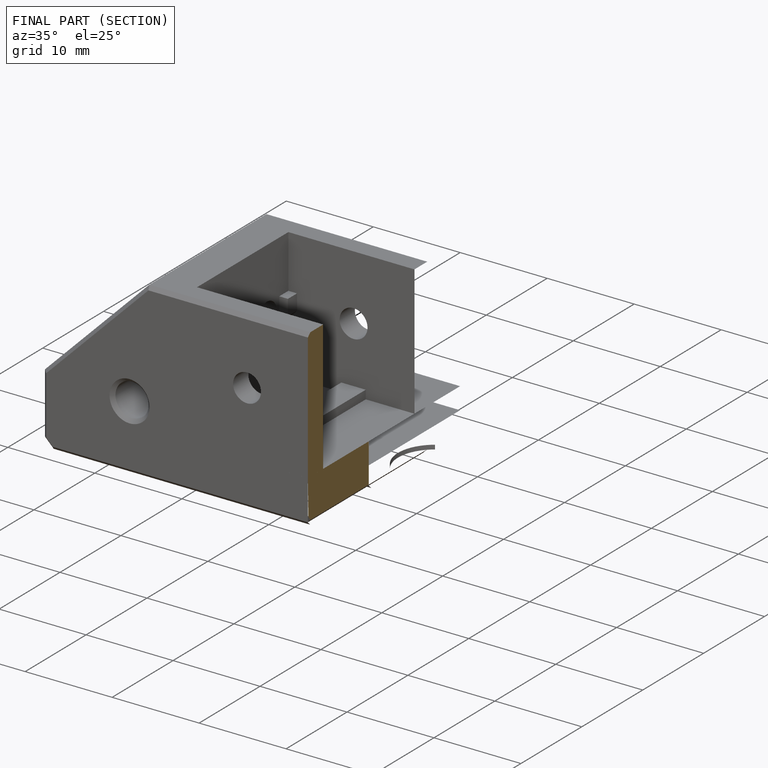
[diagram: finished part — half-section view (interior)]
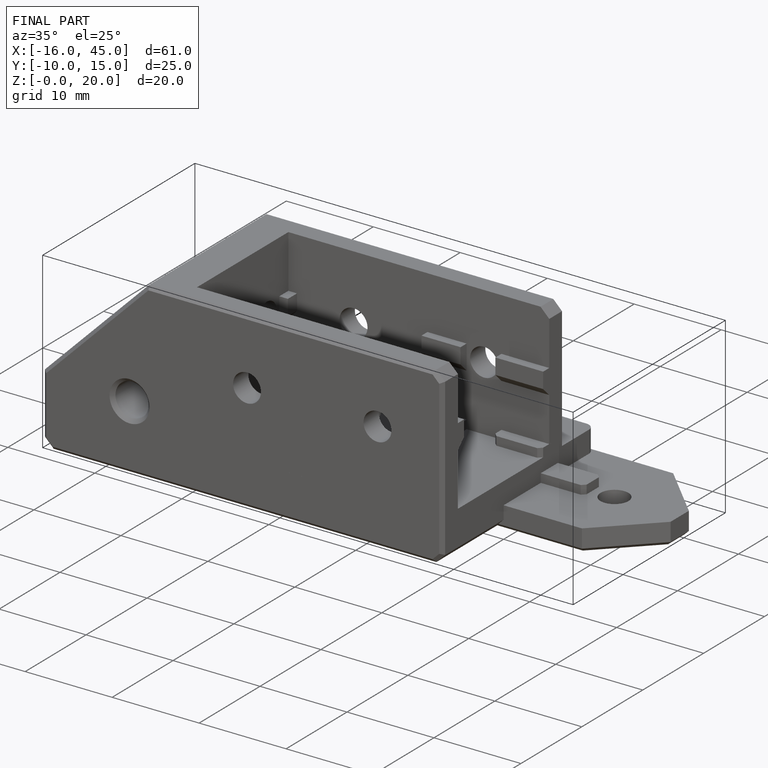
[diagram: finished part — iso view with bounding-box wireframe]
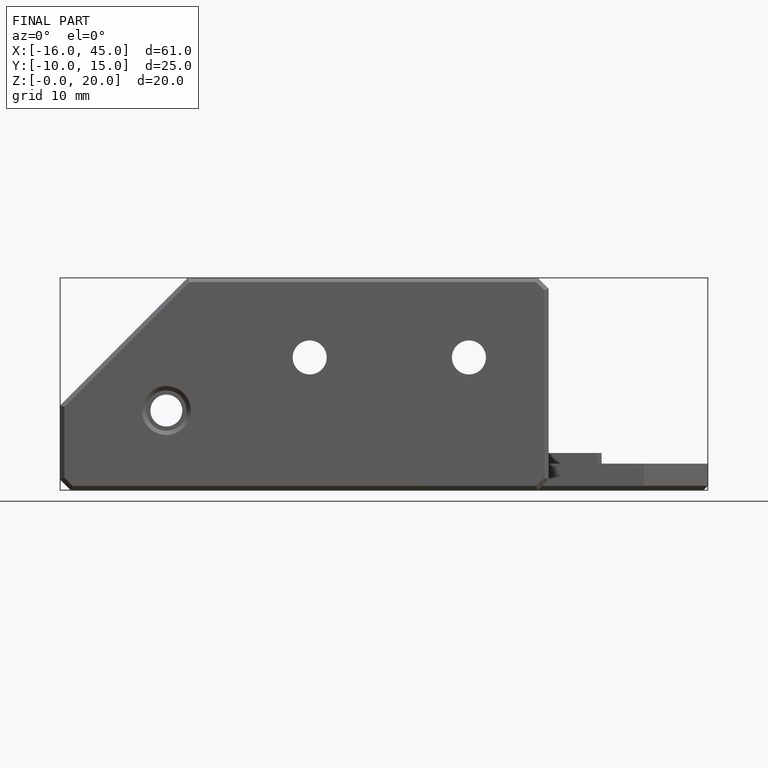
[diagram: finished part — front view with bounding-box wireframe]
